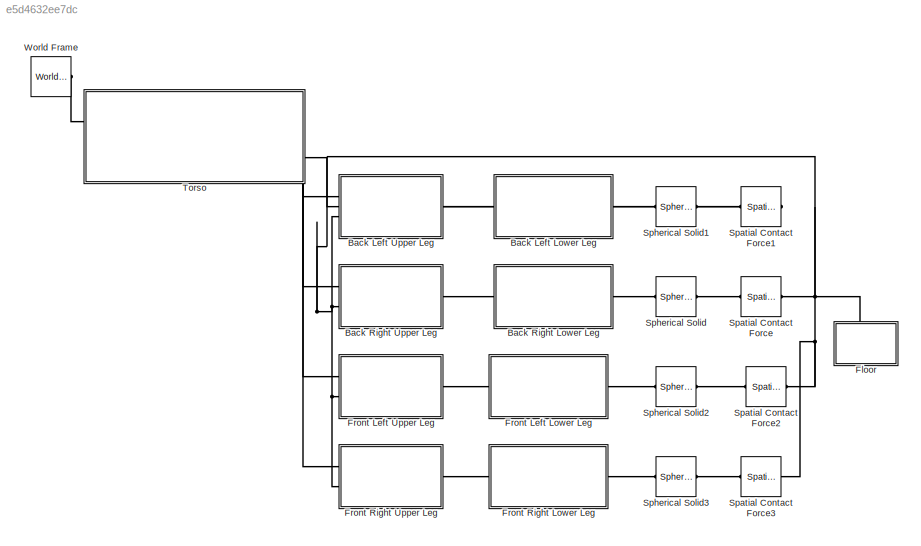
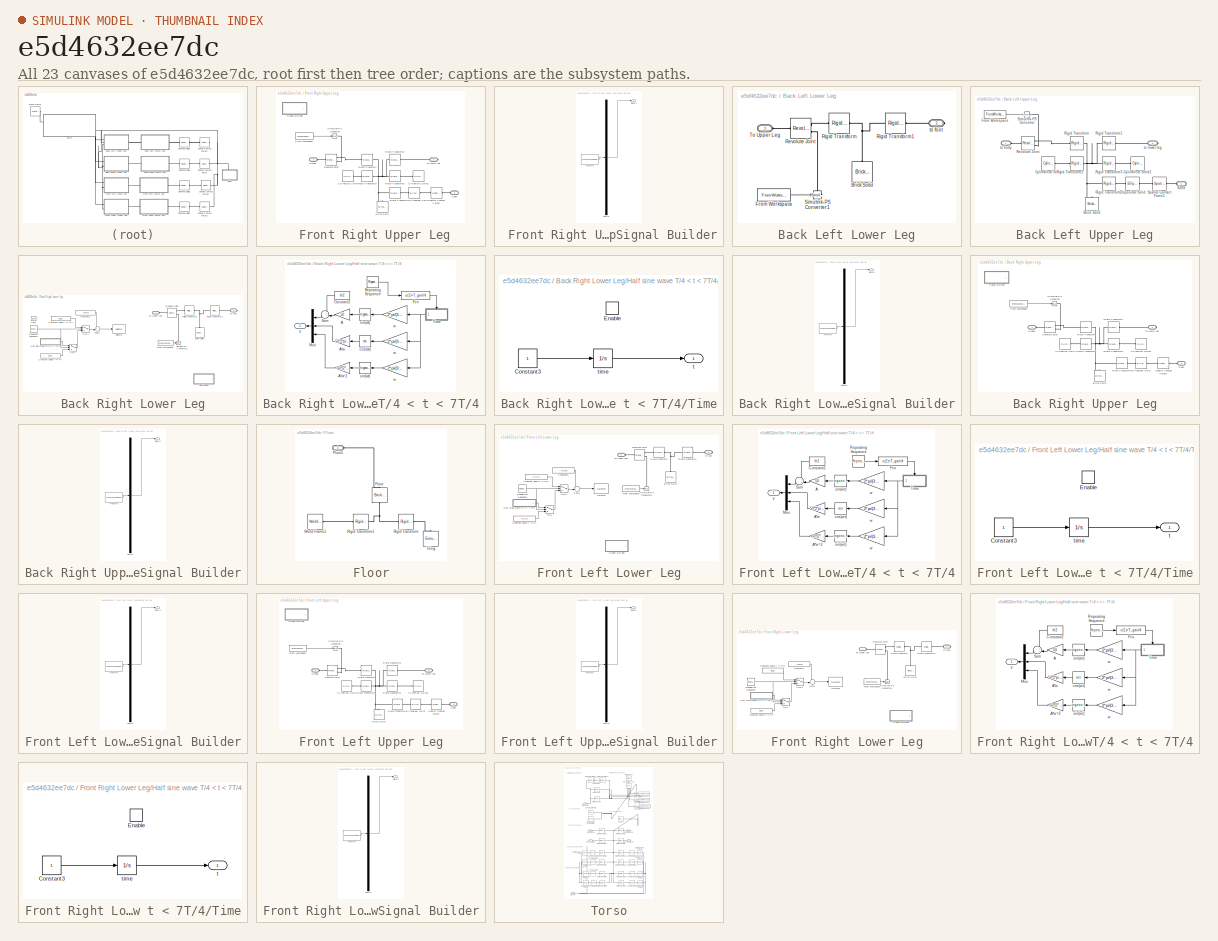
[diagram: thumbnail index - all 23 canvases of the model, root first then tree order]
MODEL slx_e5d4632ee7dc
KIND model
CONFIG AbsTol = auto
CONFIG EnableMultiTasking = on
CONFIG FixedStep = auto
CONFIG MaxStep = 0.01
CONFIG MinStep = auto
CONFIG RelTol = 1e-3
CONFIG SampleTimeConstraint = Unconstrained
CONFIG SolverName = ode15s
CONFIG StartTime = 0.0
CONFIG StopTime = 5
BLOCK [SubSystem]  Front Right Upper Leg
  Ports = [0, 0, 0, 0, 0, 2, 1]
  RequestExecContextInheritance = off
BLOCK [PMIOPort]  Front Right Upper Leg/ Knee
  Port = 3
  Side = Left
BLOCK [Reference]  Front Right Upper Leg/Brick Solid  REF=sm_lib/Body Elements/Brick Solid
  Ports = [0, 0, 0, 0, 0, 0, 1]
  SourceBlock = sm_lib/Body Elements/Brick Solid
  SourceProductBaseCode = MS
  SourceType = Brick Solid
BLOCK [Reference]  Front Right Upper Leg/Cylindrical Solid  REF=sm_lib/Body Elements/Cylindrical Solid
  Ports = [0, 0, 0, 0, 0, 0, 1]
  SourceBlock = sm_lib/Body Elements/Cylindrical Solid
  SourceProductBaseCode = MS
  SourceType = Cylindrical Solid
BLOCK [Reference]  Front Right Upper Leg/Cylindrical Solid1  REF=sm_lib/Body Elements/Cylindrical Solid
  NameLocation = top
  Ports = [0, 0, 0, 0, 0, 0, 1]
  SourceBlock = sm_lib/Body Elements/Cylindrical Solid
  SourceProductBaseCode = MS
  SourceType = Cylindrical Solid
BLOCK [Reference]  Front Right Upper Leg/Ellipsoidal Solid  REF=sm_lib/Body Elements/Ellipsoidal Solid
  NameLocation = top
  Ports = [0, 0, 0, 0, 0, 1, 1]
  SourceBlock = sm_lib/Body Elements/Ellipsoidal Solid
  SourceProductBaseCode = MS
  SourceType = Ellipsoidal Solid
BLOCK [FromWorkspace]  Front Right Upper Leg/From Workspace
  VariableName = FRUpperLeg
BLOCK [Reference]  Front Right Upper Leg/Revolute Joint  REF=sm_lib/Joints/Revolute Joint
  Ports = [0, 0, 0, 0, 0, 2, 1]
  SourceBlock = sm_lib/Joints/Revolute Joint
  SourceProductBaseCode = MS
  SourceType = Revolute Joint
BLOCK [Reference]  Front Right Upper Leg/Rigid Transform  REF=sm_lib/Frames and
Transforms/Rigid
Transform
  Ports = [0, 0, 0, 0, 0, 1, 1]
  SourceBlock = sm_lib/Frames and\nTransforms/Rigid\nTransform
  SourceProductBaseCode = MS
  SourceType = Rigid\nTransform
BLOCK [Reference]  Front Right Upper Leg/Rigid Transform1  REF=sm_lib/Frames and
Transforms/Rigid
Transform
  Ports = [0, 0, 0, 0, 0, 1, 1]
  SourceBlock = sm_lib/Frames and\nTransforms/Rigid\nTransform
  SourceProductBaseCode = MS
  SourceType = Rigid\nTransform
BLOCK [Reference]  Front Right Upper Leg/Rigid Transform2  REF=sm_lib/Frames and
Transforms/Rigid
Transform
  NameLocation = top
  Ports = [0, 0, 0, 0, 0, 1, 1]
  SourceBlock = sm_lib/Frames and\nTransforms/Rigid\nTransform
  SourceProductBaseCode = MS
  SourceType = Rigid\nTransform
BLOCK [Reference]  Front Right Upper Leg/Rigid Transform3  REF=sm_lib/Frames and
Transforms/Rigid
Transform
  Ports = [0, 0, 0, 0, 0, 1, 1]
  SourceBlock = sm_lib/Frames and\nTransforms/Rigid\nTransform
  SourceProductBaseCode = MS
  SourceType = Rigid\nTransform
BLOCK [Reference]  Front Right Upper Leg/Rigid Transform4  REF=sm_lib/Frames and
Transforms/Rigid
Transform
  Ports = [0, 0, 0, 0, 0, 1, 1]
  SourceBlock = sm_lib/Frames and\nTransforms/Rigid\nTransform
  SourceProductBaseCode = MS
  SourceType = Rigid\nTransform
BLOCK [SubSystem]  Front Right Upper Leg/Signal Builder
  ClipboardFcn = sigbuilder_block('clipboard');
  CloseFcn = sigbuilder_block('close');
  Commented = on
  ContinueFcn = sigbuilder_block('continue');
  CopyFcn = sigbuilder_block('copy');
  DeleteFcn = sigbuilder_block('delete');
  LoadFcn = sigbuilder_block('load');
  MaskHideContents = on
  ModelCloseFcn = sigbuilder_block('modelClose');
  NameChangeFcn = sigbuilder_block('namechange');
  OpenFcn = sigbuilder_block('open',[110 61 550.5 362.5 ]);
  PauseFcn = sigbuilder_block('pause');
  Ports = [0, 1]
  PreSaveFcn = sigbuilder_block('preSave');
  RequestExecContextInheritance = off
  StartFcn = sigbuilder_block('start');
  StopFcn = sigbuilder_block('stop');
  Tag = STV Subsys
BLOCK [Demux]  Front Right Upper Leg/Signal Builder/Demux
  DisplayOption = none
  Outputs = 1
  Ports = [1, 1]
  Tag = STV Demux
BLOCK [FromWorkspace]  Front Right Upper Leg/Signal Builder/FromWs
  Tag = STV FromWs
  VariableName = tuvar
BLOCK [Outport]  Front Right Upper Leg/Signal Builder/Signal 1
  Tag = STV Outport
BLOCK [Reference]  Front Right Upper Leg/Simulink-PS Converter  REF=nesl_utility/Simulink-PS
Converter
  Ports = [1, 0, 0, 0, 0, 0, 1]
  SourceBlock = nesl_utility/Simulink-PS\nConverter
  SourceProductBaseCode = SS
  SourceType = Simulink-PS\nConverter
BLOCK [Reference]  Front Right Upper Leg/Spatial Contact Force1  REF=sm_lib/Forces and
Torques/Spatial
Contact Force
  Ports = [0, 0, 0, 0, 0, 1, 1]
  SourceBlock = sm_lib/Forces and\nTorques/Spatial\nContact Force
  SourceProductBaseCode = MS
  SourceType = Spatial\nContact Force
BLOCK [PMIOPort]  Front Right Upper Leg/to body
  Side = Left
BLOCK [PMIOPort]  Front Right Upper Leg/to lower leg
  Port = 2
  Side = Right
BLOCK [SubSystem] Back Left Lower Leg
  Ports = [0, 0, 0, 0, 0, 1, 1]
  RequestExecContextInheritance = off
BLOCK [Reference] Back Left Lower Leg/Brick Solid  REF=sm_lib/Body Elements/Brick Solid
  NameLocation = right
  Ports = [0, 0, 0, 0, 0, 0, 1]
  SourceBlock = sm_lib/Body Elements/Brick Solid
  SourceProductBaseCode = MS
  SourceType = Brick Solid
BLOCK [FromWorkspace] Back Left Lower Leg/From Workspace
  VariableName = BLLowerLeg
BLOCK [Reference] Back Left Lower Leg/Revolute Joint  REF=sm_lib/Joints/Revolute Joint
  Ports = [0, 0, 0, 0, 0, 2, 1]
  SourceBlock = sm_lib/Joints/Revolute Joint
  SourceProductBaseCode = MS
  SourceType = Revolute Joint
BLOCK [Reference] Back Left Lower Leg/Rigid Transform  REF=sm_lib/Frames and
Transforms/Rigid
Transform
  Ports = [0, 0, 0, 0, 0, 1, 1]
  SourceBlock = sm_lib/Frames and\nTransforms/Rigid\nTransform
  SourceProductBaseCode = MS
  SourceType = Rigid\nTransform
BLOCK [Reference] Back Left Lower Leg/Rigid Transform1  REF=sm_lib/Frames and
Transforms/Rigid
Transform
  Ports = [0, 0, 0, 0, 0, 1, 1]
  SourceBlock = sm_lib/Frames and\nTransforms/Rigid\nTransform
  SourceProductBaseCode = MS
  SourceType = Rigid\nTransform
BLOCK [Reference] Back Left Lower Leg/Simulink-PS Converter1  REF=nesl_utility/Simulink-PS
Converter
  Ports = [1, 0, 0, 0, 0, 0, 1]
  SourceBlock = nesl_utility/Simulink-PS\nConverter
  SourceProductBaseCode = SS
  SourceType = Simulink-PS\nConverter
BLOCK [PMIOPort] Back Left Lower Leg/To Upper Leg
  Side = Left
BLOCK [PMIOPort] Back Left Lower Leg/to foot
  Port = 2
  Side = Right
BLOCK [SubSystem] Back Left Upper Leg
  Ports = [0, 0, 0, 0, 0, 2, 1]
  RequestExecContextInheritance = off
BLOCK [PMIOPort] Back Left Upper Leg/ Knee
  Port = 3
  Side = Left
BLOCK [Reference] Back Left Upper Leg/Brick Solid  REF=sm_lib/Body Elements/Brick Solid
  Ports = [0, 0, 0, 0, 0, 0, 1]
  SourceBlock = sm_lib/Body Elements/Brick Solid
  SourceProductBaseCode = MS
  SourceType = Brick Solid
BLOCK [Reference] Back Left Upper Leg/Cylindrical Solid  REF=sm_lib/Body Elements/Cylindrical Solid
  Ports = [0, 0, 0, 0, 0, 0, 1]
  SourceBlock = sm_lib/Body Elements/Cylindrical Solid
  SourceProductBaseCode = MS
  SourceType = Cylindrical Solid
BLOCK [Reference] Back Left Upper Leg/Cylindrical Solid1  REF=sm_lib/Body Elements/Cylindrical Solid
  NameLocation = top
  Ports = [0, 0, 0, 0, 0, 0, 1]
  SourceBlock = sm_lib/Body Elements/Cylindrical Solid
  SourceProductBaseCode = MS
  SourceType = Cylindrical Solid
BLOCK [Reference] Back Left Upper Leg/Ellipsoidal Solid  REF=sm_lib/Body Elements/Ellipsoidal Solid
  NameLocation = top
  Ports = [0, 0, 0, 0, 0, 1, 1]
  SourceBlock = sm_lib/Body Elements/Ellipsoidal Solid
  SourceProductBaseCode = MS
  SourceType = Ellipsoidal Solid
BLOCK [FromWorkspace] Back Left Upper Leg/From Workspace
  VariableName = BLUpperLeg
BLOCK [Reference] Back Left Upper Leg/Revolute Joint  REF=sm_lib/Joints/Revolute Joint
  Ports = [0, 0, 0, 0, 0, 2, 1]
  SourceBlock = sm_lib/Joints/Revolute Joint
  SourceProductBaseCode = MS
  SourceType = Revolute Joint
BLOCK [Reference] Back Left Upper Leg/Rigid Transform  REF=sm_lib/Frames and
Transforms/Rigid
Transform
  Ports = [0, 0, 0, 0, 0, 1, 1]
  SourceBlock = sm_lib/Frames and\nTransforms/Rigid\nTransform
  SourceProductBaseCode = MS
  SourceType = Rigid\nTransform
BLOCK [Reference] Back Left Upper Leg/Rigid Transform1  REF=sm_lib/Frames and
Transforms/Rigid
Transform
  Ports = [0, 0, 0, 0, 0, 1, 1]
  SourceBlock = sm_lib/Frames and\nTransforms/Rigid\nTransform
  SourceProductBaseCode = MS
  SourceType = Rigid\nTransform
BLOCK [Reference] Back Left Upper Leg/Rigid Transform2  REF=sm_lib/Frames and
Transforms/Rigid
Transform
  NameLocation = top
  Ports = [0, 0, 0, 0, 0, 1, 1]
  SourceBlock = sm_lib/Frames and\nTransforms/Rigid\nTransform
  SourceProductBaseCode = MS
  SourceType = Rigid\nTransform
BLOCK [Reference] Back Left Upper Leg/Rigid Transform3  REF=sm_lib/Frames and
Transforms/Rigid
Transform
  Ports = [0, 0, 0, 0, 0, 1, 1]
  SourceBlock = sm_lib/Frames and\nTransforms/Rigid\nTransform
  SourceProductBaseCode = MS
  SourceType = Rigid\nTransform
BLOCK [Reference] Back Left Upper Leg/Rigid Transform4  REF=sm_lib/Frames and
Transforms/Rigid
Transform
  Ports = [0, 0, 0, 0, 0, 1, 1]
  SourceBlock = sm_lib/Frames and\nTransforms/Rigid\nTransform
  SourceProductBaseCode = MS
  SourceType = Rigid\nTransform
BLOCK [Reference] Back Left Upper Leg/Simulink-PS Converter  REF=nesl_utility/Simulink-PS
Converter
  Ports = [1, 0, 0, 0, 0, 0, 1]
  SourceBlock = nesl_utility/Simulink-PS\nConverter
  SourceProductBaseCode = SS
  SourceType = Simulink-PS\nConverter
BLOCK [Reference] Back Left Upper Leg/Spatial Contact Force1  REF=sm_lib/Forces and
Torques/Spatial
Contact Force
  Ports = [0, 0, 0, 0, 0, 1, 1]
  SourceBlock = sm_lib/Forces and\nTorques/Spatial\nContact Force
  SourceProductBaseCode = MS
  SourceType = Spatial\nContact Force
BLOCK [PMIOPort] Back Left Upper Leg/to body
  Side = Left
BLOCK [PMIOPort] Back Left Upper Leg/to lower leg
  Port = 2
  Side = Right
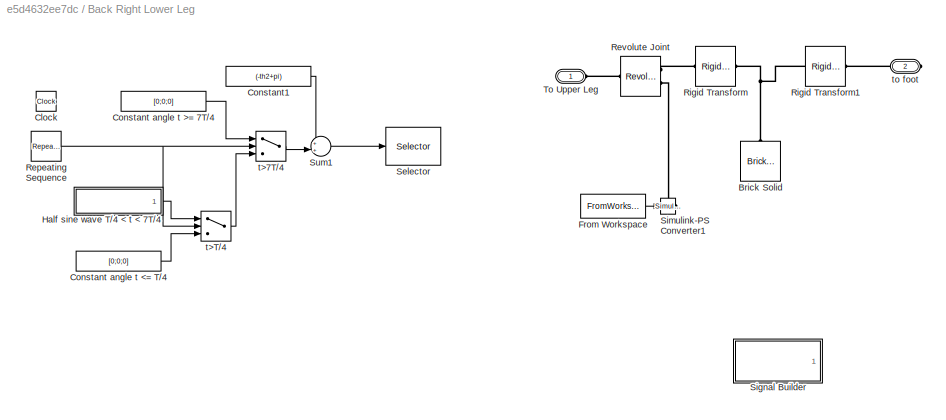
BLOCK [SubSystem] Back Right Lower Leg
  Ports = [0, 0, 0, 0, 0, 1, 1]
  RequestExecContextInheritance = off
BLOCK [Reference] Back Right Lower Leg/Brick Solid  REF=sm_lib/Body Elements/Brick Solid
  NameLocation = right
  Ports = [0, 0, 0, 0, 0, 0, 1]
  SourceBlock = sm_lib/Body Elements/Brick Solid
  SourceProductBaseCode = MS
  SourceType = Brick Solid
BLOCK [Clock] Back Right Lower Leg/Clock
  Commented = on
BLOCK [Constant] Back Right Lower Leg/Constant angle t <= T//4
  Commented = on
  Value = [0;0;0]
BLOCK [Constant] Back Right Lower Leg/Constant angle t >= 7T//4
  Commented = on
  NameLocation = top
  Value = [0;0;0]
BLOCK [Constant] Back Right Lower Leg/Constant1
  Commented = on
  Value = (-th2+pi)
BLOCK [FromWorkspace] Back Right Lower Leg/From Workspace
  VariableName = BRLowerLeg
BLOCK [SubSystem] Back Right Lower Leg/Half sine wave T//4 < t < 7T//4
  Commented = on
  Ports = [0, 1]
  RequestExecContextInheritance = off
BLOCK [Gain] Back Right Lower Leg/Half sine wave T//4 < t < 7T//4/-A*w^2
  Gain = -50*(2*pi/(3*T_gait))^2
BLOCK [Gain] Back Right Lower Leg/Half sine wave T//4 < t < 7T//4/A
  Gain = 50
BLOCK [Gain] Back Right Lower Leg/Half sine wave T//4 < t < 7T//4/A*w
  Gain = 50*2*pi/(3*T_gait)
BLOCK [Constant] Back Right Lower Leg/Half sine wave T//4 < t < 7T//4/Constant2
  Value = th2
BLOCK [Fcn] Back Right Lower Leg/Half sine wave T//4 < t < 7T//4/Fcn
  Expr = u(1)>T_gait/4
BLOCK [Mux] Back Right Lower Leg/Half sine wave T//4 < t < 7T//4/Mux
  DisplayOption = bar
  Inputs = 3
  NameLocation = top
  Ports = [3, 1]
BLOCK [Reference] Back Right Lower Leg/Half sine wave T//4 < t < 7T//4/Repeating Sequence  REF=simulink/Sources/Repeating
Sequence
  Ports = [0, 1]
  SourceBlock = simulink/Sources/Repeating\nSequence
  SourceProductBaseCode = SL
  SourceType = Repeating table
BLOCK [Sum] Back Right Lower Leg/Half sine wave T//4 < t < 7T//4/Sum
  Inputs = ++|
  NameLocation = top
  Ports = [2, 1]
BLOCK [SubSystem] Back Right Lower Leg/Half sine wave T//4 < t < 7T//4/Time
  Ports = [0, 1, 1]
  RequestExecContextInheritance = off
  TreatAsAtomicUnit = on
BLOCK [Constant] Back Right Lower Leg/Half sine wave T//4 < t < 7T//4/Time/Constant3
BLOCK [EnablePort] Back Right Lower Leg/Half sine wave T//4 < t < 7T//4/Time/Enable
  Ports = []
BLOCK [Outport] Back Right Lower Leg/Half sine wave T//4 < t < 7T//4/Time/t
  InitialOutput = 0
  VectorParamsAs1DForOutWhenUnconnected = off
BLOCK [Integrator] Back Right Lower Leg/Half sine wave T//4 < t < 7T//4/Time/time
  Ports = [1, 1]
BLOCK [Trigonometry] Back Right Lower Leg/Half sine wave T//4 < t < 7T//4/cos(wt)
  Operator = cos
  Ports = [1, 1]
BLOCK [Trigonometry] Back Right Lower Leg/Half sine wave T//4 < t < 7T//4/sin(wt)
  Ports = [1, 1]
BLOCK [Trigonometry] Back Right Lower Leg/Half sine wave T//4 < t < 7T//4/sin(wt) 
  Ports = [1, 1]
BLOCK [Gain] Back Right Lower Leg/Half sine wave T//4 < t < 7T//4/w
  Gain = 2*pi/(3*T_gait)
BLOCK [Gain] Back Right Lower Leg/Half sine wave T//4 < t < 7T//4/w 
  Gain = 2*pi/(3*T_gait)
BLOCK [Gain] Back Right Lower Leg/Half sine wave T//4 < t < 7T//4/w  
  Gain = 2*pi/(3*T_gait)
BLOCK [Outport] Back Right Lower Leg/Half sine wave T//4 < t < 7T//4/y
  VectorParamsAs1DForOutWhenUnconnected = off
BLOCK [Reference] Back Right Lower Leg/Repeating Sequence  REF=simulink/Sources/Repeating
Sequence
  Commented = on
  Ports = [0, 1]
  SourceBlock = simulink/Sources/Repeating\nSequence
  SourceProductBaseCode = SL
  SourceType = Repeating table
BLOCK [Reference] Back Right Lower Leg/Revolute Joint  REF=sm_lib/Joints/Revolute Joint
  Ports = [0, 0, 0, 0, 0, 2, 1]
  SourceBlock = sm_lib/Joints/Revolute Joint
  SourceProductBaseCode = MS
  SourceType = Revolute Joint
BLOCK [Reference] Back Right Lower Leg/Rigid Transform  REF=sm_lib/Frames and
Transforms/Rigid
Transform
  Ports = [0, 0, 0, 0, 0, 1, 1]
  SourceBlock = sm_lib/Frames and\nTransforms/Rigid\nTransform
  SourceProductBaseCode = MS
  SourceType = Rigid\nTransform
BLOCK [Reference] Back Right Lower Leg/Rigid Transform1  REF=sm_lib/Frames and
Transforms/Rigid
Transform
  Ports = [0, 0, 0, 0, 0, 1, 1]
  SourceBlock = sm_lib/Frames and\nTransforms/Rigid\nTransform
  SourceProductBaseCode = MS
  SourceType = Rigid\nTransform
BLOCK [Selector] Back Right Lower Leg/Selector
  Commented = on
  IndexOptions = Index vector (dialog)
  Indices = 1
  InputPortWidth = 3
  OutputSizes = 1
  Ports = [1, 1]
BLOCK [SubSystem] Back Right Lower Leg/Signal Builder
  ClipboardFcn = sigbuilder_block('clipboard');
  CloseFcn = sigbuilder_block('close');
  Commented = on
  ContinueFcn = sigbuilder_block('continue');
  CopyFcn = sigbuilder_block('copy');
  DeleteFcn = sigbuilder_block('delete');
  LoadFcn = sigbuilder_block('load');
  MaskHideContents = on
  ModelCloseFcn = sigbuilder_block('modelClose');
  NameChangeFcn = sigbuilder_block('namechange');
  OpenFcn = sigbuilder_block('open',[110 61 550.5 362.5 ]);
  PauseFcn = sigbuilder_block('pause');
  Ports = [0, 1]
  PreSaveFcn = sigbuilder_block('preSave');
  RequestExecContextInheritance = off
  StartFcn = sigbuilder_block('start');
  StopFcn = sigbuilder_block('stop');
  Tag = STV Subsys
BLOCK [Demux] Back Right Lower Leg/Signal Builder/Demux
  DisplayOption = none
  Outputs = 1
  Ports = [1, 1]
  Tag = STV Demux
BLOCK [FromWorkspace] Back Right Lower Leg/Signal Builder/FromWs
  Tag = STV FromWs
  VariableName = tuvar
BLOCK [Outport] Back Right Lower Leg/Signal Builder/Signal 1
  Tag = STV Outport
BLOCK [Reference] Back Right Lower Leg/Simulink-PS Converter1  REF=nesl_utility/Simulink-PS
Converter
  Ports = [1, 0, 0, 0, 0, 0, 1]
  SourceBlock = nesl_utility/Simulink-PS\nConverter
  SourceProductBaseCode = SS
  SourceType = Simulink-PS\nConverter
BLOCK [Sum] Back Right Lower Leg/Sum1
  Commented = on
  Inputs = ++|
  Ports = [2, 1]
BLOCK [PMIOPort] Back Right Lower Leg/To Upper Leg
  Side = Left
BLOCK [Switch] Back Right Lower Leg/t>7T//4
  Commented = on
  InputSameDT = off
  SaturateOnIntegerOverflow = off
  Threshold = 7*T_gait/4
BLOCK [Switch] Back Right Lower Leg/t>T//4
  Commented = on
  InputSameDT = off
  SaturateOnIntegerOverflow = off
  Threshold = T_gait/4
BLOCK [PMIOPort] Back Right Lower Leg/to foot
  Port = 2
  Side = Right
BLOCK [SubSystem] Back Right Upper Leg
  Ports = [0, 0, 0, 0, 0, 2, 1]
  RequestExecContextInheritance = off
BLOCK [PMIOPort] Back Right Upper Leg/ Knee
  Port = 3
  Side = Left
BLOCK [Reference] Back Right Upper Leg/Brick Solid  REF=sm_lib/Body Elements/Brick Solid
  Ports = [0, 0, 0, 0, 0, 0, 1]
  SourceBlock = sm_lib/Body Elements/Brick Solid
  SourceProductBaseCode = MS
  SourceType = Brick Solid
BLOCK [Reference] Back Right Upper Leg/Cylindrical Solid  REF=sm_lib/Body Elements/Cylindrical Solid
  Ports = [0, 0, 0, 0, 0, 0, 1]
  SourceBlock = sm_lib/Body Elements/Cylindrical Solid
  SourceProductBaseCode = MS
  SourceType = Cylindrical Solid
BLOCK [Reference] Back Right Upper Leg/Cylindrical Solid1  REF=sm_lib/Body Elements/Cylindrical Solid
  NameLocation = top
  Ports = [0, 0, 0, 0, 0, 0, 1]
  SourceBlock = sm_lib/Body Elements/Cylindrical Solid
  SourceProductBaseCode = MS
  SourceType = Cylindrical Solid
BLOCK [Reference] Back Right Upper Leg/Ellipsoidal Solid  REF=sm_lib/Body Elements/Ellipsoidal Solid
  NameLocation = top
  Ports = [0, 0, 0, 0, 0, 1, 1]
  SourceBlock = sm_lib/Body Elements/Ellipsoidal Solid
  SourceProductBaseCode = MS
  SourceType = Ellipsoidal Solid
BLOCK [FromWorkspace] Back Right Upper Leg/From Workspace
  VariableName = BRUpperLeg
BLOCK [Reference] Back Right Upper Leg/Revolute Joint  REF=sm_lib/Joints/Revolute Joint
  Ports = [0, 0, 0, 0, 0, 2, 1]
  SourceBlock = sm_lib/Joints/Revolute Joint
  SourceProductBaseCode = MS
  SourceType = Revolute Joint
BLOCK [Reference] Back Right Upper Leg/Rigid Transform  REF=sm_lib/Frames and
Transforms/Rigid
Transform
  Ports = [0, 0, 0, 0, 0, 1, 1]
  SourceBlock = sm_lib/Frames and\nTransforms/Rigid\nTransform
  SourceProductBaseCode = MS
  SourceType = Rigid\nTransform
BLOCK [Reference] Back Right Upper Leg/Rigid Transform1  REF=sm_lib/Frames and
Transforms/Rigid
Transform
  Ports = [0, 0, 0, 0, 0, 1, 1]
  SourceBlock = sm_lib/Frames and\nTransforms/Rigid\nTransform
  SourceProductBaseCode = MS
  SourceType = Rigid\nTransform
BLOCK [Reference] Back Right Upper Leg/Rigid Transform2  REF=sm_lib/Frames and
Transforms/Rigid
Transform
  NameLocation = top
  Ports = [0, 0, 0, 0, 0, 1, 1]
  SourceBlock = sm_lib/Frames and\nTransforms/Rigid\nTransform
  SourceProductBaseCode = MS
  SourceType = Rigid\nTransform
BLOCK [Reference] Back Right Upper Leg/Rigid Transform3  REF=sm_lib/Frames and
Transforms/Rigid
Transform
  Ports = [0, 0, 0, 0, 0, 1, 1]
  SourceBlock = sm_lib/Frames and\nTransforms/Rigid\nTransform
  SourceProductBaseCode = MS
  SourceType = Rigid\nTransform
BLOCK [Reference] Back Right Upper Leg/Rigid Transform4  REF=sm_lib/Frames and
Transforms/Rigid
Transform
  Ports = [0, 0, 0, 0, 0, 1, 1]
  SourceBlock = sm_lib/Frames and\nTransforms/Rigid\nTransform
  SourceProductBaseCode = MS
  SourceType = Rigid\nTransform
BLOCK [SubSystem] Back Right Upper Leg/Signal Builder
  ClipboardFcn = sigbuilder_block('clipboard');
  CloseFcn = sigbuilder_block('close');
  Commented = on
  ContinueFcn = sigbuilder_block('continue');
  CopyFcn = sigbuilder_block('copy');
  DeleteFcn = sigbuilder_block('delete');
  LoadFcn = sigbuilder_block('load');
  MaskHideContents = on
  ModelCloseFcn = sigbuilder_block('modelClose');
  NameChangeFcn = sigbuilder_block('namechange');
  OpenFcn = sigbuilder_block('open',[110 61 550.5 362.5 ]);
  PauseFcn = sigbuilder_block('pause');
  Ports = [0, 1]
  PreSaveFcn = sigbuilder_block('preSave');
  RequestExecContextInheritance = off
  StartFcn = sigbuilder_block('start');
  StopFcn = sigbuilder_block('stop');
  Tag = STV Subsys
BLOCK [Demux] Back Right Upper Leg/Signal Builder/Demux
  DisplayOption = none
  Outputs = 1
  Ports = [1, 1]
  Tag = STV Demux
BLOCK [FromWorkspace] Back Right Upper Leg/Signal Builder/FromWs
  Tag = STV FromWs
  VariableName = tuvar
BLOCK [Outport] Back Right Upper Leg/Signal Builder/Signal 1
  Tag = STV Outport
BLOCK [Reference] Back Right Upper Leg/Simulink-PS Converter  REF=nesl_utility/Simulink-PS
Converter
  Ports = [1, 0, 0, 0, 0, 0, 1]
  SourceBlock = nesl_utility/Simulink-PS\nConverter
  SourceProductBaseCode = SS
  SourceType = Simulink-PS\nConverter
BLOCK [Reference] Back Right Upper Leg/Spatial Contact Force1  REF=sm_lib/Forces and
Torques/Spatial
Contact Force
  Ports = [0, 0, 0, 0, 0, 1, 1]
  SourceBlock = sm_lib/Forces and\nTorques/Spatial\nContact Force
  SourceProductBaseCode = MS
  SourceType = Spatial\nContact Force
BLOCK [PMIOPort] Back Right Upper Leg/to body
  Side = Left
BLOCK [PMIOPort] Back Right Upper Leg/to lower leg
  Port = 2
  Side = Right
BLOCK [SubSystem] Floor
  PortSchema = {"entries":[{"content":{"sides":[{"content":{"connectorIds":[]},"type":"ConnectorPlacement.EquallySpacedRectSide","uuid":"11e96fa0-1698-473b-91b9-c65afd80511d"},{"content":{"connectorIds":[],"side":"RIGHT"},"type":"ConnectorPlacement.EquallySpacedRectSide","uuid":"698adcb8-63bc-493a-8506-9415d482b8fe"},{"content":{"connectorIds":["LConn1"],"side":"TOP"},"type":"ConnectorPlacement.EquallySpacedRect...<+239ch>
  Ports = [0, 0, 0, 0, 0, 1]
  RequestExecContextInheritance = off
BLOCK [Reference] Floor/Floor  REF=sm_lib/Body Elements/Brick Solid
  NameLocation = left
  Ports = [0, 0, 0, 0, 0, 1, 1]
  SourceBlock = sm_lib/Body Elements/Brick Solid
  SourceProductBaseCode = MS
  SourceType = Brick Solid
BLOCK [PMIOPort] Floor/Floor1
  Side = Left
BLOCK [Reference] Floor/Rigid Transform  REF=sm_lib/Frames and
Transforms/Rigid
Transform
  Ports = [0, 0, 0, 0, 0, 1, 1]
  SourceBlock = sm_lib/Frames and\nTransforms/Rigid\nTransform
  SourceProductBaseCode = MS
  SourceType = Rigid\nTransform
BLOCK [Reference] Floor/Rigid Transform1  REF=sm_lib/Frames and
Transforms/Rigid
Transform
  Ports = [0, 0, 0, 0, 0, 1, 1]
  SourceBlock = sm_lib/Frames and\nTransforms/Rigid\nTransform
  SourceProductBaseCode = MS
  SourceType = Rigid\nTransform
BLOCK [Reference] Floor/Tiling  REF=sm_lib/Body Elements/Extruded Solid
  NameLocation = left
  Ports = [0, 0, 0, 0, 0, 0, 1]
  SourceBlock = sm_lib/Body Elements/Extruded Solid
  SourceProductBaseCode = MS
  SourceType = Extruded Solid
BLOCK [Reference] Floor/World Frame1  REF=sm_lib/Frames and
Transforms/World Frame
  Ports = [0, 0, 0, 0, 0, 0, 1]
  SourceBlock = sm_lib/Frames and\nTransforms/World Frame
  SourceProductBaseCode = MS
  SourceType = World Frame
BLOCK [SubSystem] Front Left Lower Leg
  Ports = [0, 0, 0, 0, 0, 1, 1]
  RequestExecContextInheritance = off
BLOCK [Reference] Front Left Lower Leg/Brick Solid  REF=sm_lib/Body Elements/Brick Solid
  NameLocation = right
  Ports = [0, 0, 0, 0, 0, 0, 1]
  SourceBlock = sm_lib/Body Elements/Brick Solid
  SourceProductBaseCode = MS
  SourceType = Brick Solid
BLOCK [Constant] Front Left Lower Leg/Constant angle t <= T//4
  Commented = on
  Value = [0;0;0]
BLOCK [Constant] Front Left Lower Leg/Constant angle t >= 7T//4
  Commented = on
  NameLocation = top
  Value = [0;0;0]
BLOCK [Constant] Front Left Lower Leg/Constant1
  Commented = on
  Value = (-th2+pi)
BLOCK [FromWorkspace] Front Left Lower Leg/From Workspace
  VariableName = FLLowerLeg
BLOCK [SubSystem] Front Left Lower Leg/Half sine wave T//4 < t < 7T//4
  Commented = on
  Ports = [0, 1]
  RequestExecContextInheritance = off
BLOCK [Gain] Front Left Lower Leg/Half sine wave T//4 < t < 7T//4/-A*w^2
  Gain = -50*(2*pi/(3*T_gait))^2
BLOCK [Gain] Front Left Lower Leg/Half sine wave T//4 < t < 7T//4/A
  Gain = 50
BLOCK [Gain] Front Left Lower Leg/Half sine wave T//4 < t < 7T//4/A*w
  Gain = 50*2*pi/(3*T_gait)
BLOCK [Constant] Front Left Lower Leg/Half sine wave T//4 < t < 7T//4/Constant2
  Value = th2
BLOCK [Fcn] Front Left Lower Leg/Half sine wave T//4 < t < 7T//4/Fcn
  Expr = u(1)>T_gait/4
BLOCK [Mux] Front Left Lower Leg/Half sine wave T//4 < t < 7T//4/Mux
  DisplayOption = bar
  Inputs = 3
  NameLocation = top
  Ports = [3, 1]
BLOCK [Reference] Front Left Lower Leg/Half sine wave T//4 < t < 7T//4/Repeating Sequence  REF=simulink/Sources/Repeating
Sequence
  Ports = [0, 1]
  SourceBlock = simulink/Sources/Repeating\nSequence
  SourceProductBaseCode = SL
  SourceType = Repeating table
BLOCK [Sum] Front Left Lower Leg/Half sine wave T//4 < t < 7T//4/Sum
  Inputs = ++|
  NameLocation = top
  Ports = [2, 1]
BLOCK [SubSystem] Front Left Lower Leg/Half sine wave T//4 < t < 7T//4/Time
  Ports = [0, 1, 1]
  RequestExecContextInheritance = off
  TreatAsAtomicUnit = on
BLOCK [Constant] Front Left Lower Leg/Half sine wave T//4 < t < 7T//4/Time/Constant3
BLOCK [EnablePort] Front Left Lower Leg/Half sine wave T//4 < t < 7T//4/Time/Enable
  Ports = []
BLOCK [Outport] Front Left Lower Leg/Half sine wave T//4 < t < 7T//4/Time/t
  InitialOutput = 0
  VectorParamsAs1DForOutWhenUnconnected = off
BLOCK [Integrator] Front Left Lower Leg/Half sine wave T//4 < t < 7T//4/Time/time
  Ports = [1, 1]
BLOCK [Trigonometry] Front Left Lower Leg/Half sine wave T//4 < t < 7T//4/cos(wt)
  Operator = cos
  Ports = [1, 1]
BLOCK [Trigonometry] Front Left Lower Leg/Half sine wave T//4 < t < 7T//4/sin(wt)
  Ports = [1, 1]
BLOCK [Trigonometry] Front Left Lower Leg/Half sine wave T//4 < t < 7T//4/sin(wt) 
  Ports = [1, 1]
BLOCK [Gain] Front Left Lower Leg/Half sine wave T//4 < t < 7T//4/w
  Gain = 2*pi/(3*T_gait)
BLOCK [Gain] Front Left Lower Leg/Half sine wave T//4 < t < 7T//4/w 
  Gain = 2*pi/(3*T_gait)
BLOCK [Gain] Front Left Lower Leg/Half sine wave T//4 < t < 7T//4/w  
  Gain = 2*pi/(3*T_gait)
BLOCK [Outport] Front Left Lower Leg/Half sine wave T//4 < t < 7T//4/y
  VectorParamsAs1DForOutWhenUnconnected = off
BLOCK [Reference] Front Left Lower Leg/Repeating Sequence  REF=simulink/Sources/Repeating
Sequence
  Commented = on
  Ports = [0, 1]
  SourceBlock = simulink/Sources/Repeating\nSequence
  SourceProductBaseCode = SL
  SourceType = Repeating table
BLOCK [Reference] Front Left Lower Leg/Revolute Joint  REF=sm_lib/Joints/Revolute Joint
  Ports = [0, 0, 0, 0, 0, 2, 1]
  SourceBlock = sm_lib/Joints/Revolute Joint
  SourceProductBaseCode = MS
  SourceType = Revolute Joint
BLOCK [Reference] Front Left Lower Leg/Rigid Transform  REF=sm_lib/Frames and
Transforms/Rigid
Transform
  Ports = [0, 0, 0, 0, 0, 1, 1]
  SourceBlock = sm_lib/Frames and\nTransforms/Rigid\nTransform
  SourceProductBaseCode = MS
  SourceType = Rigid\nTransform
BLOCK [Reference] Front Left Lower Leg/Rigid Transform1  REF=sm_lib/Frames and
Transforms/Rigid
Transform
  Ports = [0, 0, 0, 0, 0, 1, 1]
  SourceBlock = sm_lib/Frames and\nTransforms/Rigid\nTransform
  SourceProductBaseCode = MS
  SourceType = Rigid\nTransform
BLOCK [Selector] Front Left Lower Leg/Selector
  Commented = on
  IndexOptions = Index vector (dialog)
  Indices = 1
  InputPortWidth = 3
  OutputSizes = 1
  Ports = [1, 1]
BLOCK [SubSystem] Front Left Lower Leg/Signal Builder
  ClipboardFcn = sigbuilder_block('clipboard');
  CloseFcn = sigbuilder_block('close');
  Commented = on
  ContinueFcn = sigbuilder_block('continue');
  CopyFcn = sigbuilder_block('copy');
  DeleteFcn = sigbuilder_block('delete');
  LoadFcn = sigbuilder_block('load');
  MaskHideContents = on
  ModelCloseFcn = sigbuilder_block('modelClose');
  NameChangeFcn = sigbuilder_block('namechange');
  OpenFcn = sigbuilder_block('open',[110 61 550.5 362.5 ]);
  PauseFcn = sigbuilder_block('pause');
  Ports = [0, 1]
  PreSaveFcn = sigbuilder_block('preSave');
  RequestExecContextInheritance = off
  StartFcn = sigbuilder_block('start');
  StopFcn = sigbuilder_block('stop');
  Tag = STV Subsys
BLOCK [Demux] Front Left Lower Leg/Signal Builder/Demux
  DisplayOption = none
  Outputs = 1
  Ports = [1, 1]
  Tag = STV Demux
BLOCK [FromWorkspace] Front Left Lower Leg/Signal Builder/FromWs
  Tag = STV FromWs
  VariableName = tuvar
BLOCK [Outport] Front Left Lower Leg/Signal Builder/Signal 1
  Tag = STV Outport
BLOCK [Reference] Front Left Lower Leg/Simulink-PS Converter1  REF=nesl_utility/Simulink-PS
Converter
  Ports = [1, 0, 0, 0, 0, 0, 1]
  SourceBlock = nesl_utility/Simulink-PS\nConverter
  SourceProductBaseCode = SS
  SourceType = Simulink-PS\nConverter
BLOCK [Sum] Front Left Lower Leg/Sum1
  Commented = on
  Inputs = ++|
  Ports = [2, 1]
BLOCK [PMIOPort] Front Left Lower Leg/To Upper Leg
  Side = Left
BLOCK [Switch] Front Left Lower Leg/t>7T//4
  Commented = on
  InputSameDT = off
  SaturateOnIntegerOverflow = off
  Threshold = 7*T_gait/4
BLOCK [Switch] Front Left Lower Leg/t>T//4
  Commented = on
  InputSameDT = off
  SaturateOnIntegerOverflow = off
  Threshold = T_gait/4
BLOCK [PMIOPort] Front Left Lower Leg/to foot
  Port = 2
  Side = Right
BLOCK [SubSystem] Front Left Upper Leg
  Ports = [0, 0, 0, 0, 0, 2, 1]
  RequestExecContextInheritance = off
BLOCK [PMIOPort] Front Left Upper Leg/ Knee
  Port = 3
  Side = Left
BLOCK [Reference] Front Left Upper Leg/Brick Solid  REF=sm_lib/Body Elements/Brick Solid
  Ports = [0, 0, 0, 0, 0, 0, 1]
  SourceBlock = sm_lib/Body Elements/Brick Solid
  SourceProductBaseCode = MS
  SourceType = Brick Solid
BLOCK [Reference] Front Left Upper Leg/Cylindrical Solid  REF=sm_lib/Body Elements/Cylindrical Solid
  Ports = [0, 0, 0, 0, 0, 0, 1]
  SourceBlock = sm_lib/Body Elements/Cylindrical Solid
  SourceProductBaseCode = MS
  SourceType = Cylindrical Solid
BLOCK [Reference] Front Left Upper Leg/Cylindrical Solid1  REF=sm_lib/Body Elements/Cylindrical Solid
  NameLocation = top
  Ports = [0, 0, 0, 0, 0, 0, 1]
  SourceBlock = sm_lib/Body Elements/Cylindrical Solid
  SourceProductBaseCode = MS
  SourceType = Cylindrical Solid
BLOCK [Reference] Front Left Upper Leg/Ellipsoidal Solid  REF=sm_lib/Body Elements/Ellipsoidal Solid
  NameLocation = top
  Ports = [0, 0, 0, 0, 0, 1, 1]
  SourceBlock = sm_lib/Body Elements/Ellipsoidal Solid
  SourceProductBaseCode = MS
  SourceType = Ellipsoidal Solid
BLOCK [FromWorkspace] Front Left Upper Leg/From Workspace
  VariableName = FLUpperLeg
BLOCK [Reference] Front Left Upper Leg/Revolute Joint  REF=sm_lib/Joints/Revolute Joint
  Ports = [0, 0, 0, 0, 0, 2, 1]
  SourceBlock = sm_lib/Joints/Revolute Joint
  SourceProductBaseCode = MS
  SourceType = Revolute Joint
BLOCK [Reference] Front Left Upper Leg/Rigid Transform  REF=sm_lib/Frames and
Transforms/Rigid
Transform
  Ports = [0, 0, 0, 0, 0, 1, 1]
  SourceBlock = sm_lib/Frames and\nTransforms/Rigid\nTransform
  SourceProductBaseCode = MS
  SourceType = Rigid\nTransform
BLOCK [Reference] Front Left Upper Leg/Rigid Transform1  REF=sm_lib/Frames and
Transforms/Rigid
Transform
  Ports = [0, 0, 0, 0, 0, 1, 1]
  SourceBlock = sm_lib/Frames and\nTransforms/Rigid\nTransform
  SourceProductBaseCode = MS
  SourceType = Rigid\nTransform
BLOCK [Reference] Front Left Upper Leg/Rigid Transform2  REF=sm_lib/Frames and
Transforms/Rigid
Transform
  NameLocation = top
  Ports = [0, 0, 0, 0, 0, 1, 1]
  SourceBlock = sm_lib/Frames and\nTransforms/Rigid\nTransform
  SourceProductBaseCode = MS
  SourceType = Rigid\nTransform
BLOCK [Reference] Front Left Upper Leg/Rigid Transform3  REF=sm_lib/Frames and
Transforms/Rigid
Transform
  Ports = [0, 0, 0, 0, 0, 1, 1]
  SourceBlock = sm_lib/Frames and\nTransforms/Rigid\nTransform
  SourceProductBaseCode = MS
  SourceType = Rigid\nTransform
BLOCK [Reference] Front Left Upper Leg/Rigid Transform4  REF=sm_lib/Frames and
Transforms/Rigid
Transform
  Ports = [0, 0, 0, 0, 0, 1, 1]
  SourceBlock = sm_lib/Frames and\nTransforms/Rigid\nTransform
  SourceProductBaseCode = MS
  SourceType = Rigid\nTransform
BLOCK [SubSystem] Front Left Upper Leg/Signal Builder
  ClipboardFcn = sigbuilder_block('clipboard');
  CloseFcn = sigbuilder_block('close');
  Commented = on
  ContinueFcn = sigbuilder_block('continue');
  CopyFcn = sigbuilder_block('copy');
  DeleteFcn = sigbuilder_block('delete');
  LoadFcn = sigbuilder_block('load');
  MaskHideContents = on
  ModelCloseFcn = sigbuilder_block('modelClose');
  NameChangeFcn = sigbuilder_block('namechange');
  OpenFcn = sigbuilder_block('open',[110 61 550.5 362.5 ]);
  PauseFcn = sigbuilder_block('pause');
  Ports = [0, 1]
  PreSaveFcn = sigbuilder_block('preSave');
  RequestExecContextInheritance = off
  StartFcn = sigbuilder_block('start');
  StopFcn = sigbuilder_block('stop');
  Tag = STV Subsys
BLOCK [Demux] Front Left Upper Leg/Signal Builder/Demux
  DisplayOption = none
  Outputs = 1
  Ports = [1, 1]
  Tag = STV Demux
BLOCK [FromWorkspace] Front Left Upper Leg/Signal Builder/FromWs
  Tag = STV FromWs
  VariableName = tuvar
BLOCK [Outport] Front Left Upper Leg/Signal Builder/Signal 1
  Tag = STV Outport
BLOCK [Reference] Front Left Upper Leg/Simulink-PS Converter  REF=nesl_utility/Simulink-PS
Converter
  Ports = [1, 0, 0, 0, 0, 0, 1]
  SourceBlock = nesl_utility/Simulink-PS\nConverter
  SourceProductBaseCode = SS
  SourceType = Simulink-PS\nConverter
BLOCK [Reference] Front Left Upper Leg/Spatial Contact Force1  REF=sm_lib/Forces and
Torques/Spatial
Contact Force
  Ports = [0, 0, 0, 0, 0, 1, 1]
  SourceBlock = sm_lib/Forces and\nTorques/Spatial\nContact Force
  SourceProductBaseCode = MS
  SourceType = Spatial\nContact Force
BLOCK [PMIOPort] Front Left Upper Leg/to body
  Side = Left
BLOCK [PMIOPort] Front Left Upper Leg/to lower leg
  Port = 2
  Side = Right
BLOCK [SubSystem] Front Right Lower Leg
  Ports = [0, 0, 0, 0, 0, 1, 1]
  RequestExecContextInheritance = off
BLOCK [Reference] Front Right Lower Leg/Brick Solid  REF=sm_lib/Body Elements/Brick Solid
  NameLocation = right
  Ports = [0, 0, 0, 0, 0, 0, 1]
  SourceBlock = sm_lib/Body Elements/Brick Solid
  SourceProductBaseCode = MS
  SourceType = Brick Solid
BLOCK [Constant] Front Right Lower Leg/Constant angle t <= T//4
  Commented = on
  Value = [0;0;0]
BLOCK [Constant] Front Right Lower Leg/Constant angle t >= 7T//4
  Commented = on
  NameLocation = top
  Value = [0;0;0]
BLOCK [Constant] Front Right Lower Leg/Constant1
  Commented = on
  Value = (-th2+pi)
BLOCK [FromWorkspace] Front Right Lower Leg/From Workspace
  VariableName = FRLowerLeg
BLOCK [SubSystem] Front Right Lower Leg/Half sine wave T//4 < t < 7T//4
  Commented = on
  Ports = [0, 1]
  RequestExecContextInheritance = off
BLOCK [Gain] Front Right Lower Leg/Half sine wave T//4 < t < 7T//4/-A*w^2
  Gain = -50*(2*pi/(3*T_gait))^2
BLOCK [Gain] Front Right Lower Leg/Half sine wave T//4 < t < 7T//4/A
  Gain = 50
BLOCK [Gain] Front Right Lower Leg/Half sine wave T//4 < t < 7T//4/A*w
  Gain = 50*2*pi/(3*T_gait)
BLOCK [Constant] Front Right Lower Leg/Half sine wave T//4 < t < 7T//4/Constant2
  Value = th2
BLOCK [Fcn] Front Right Lower Leg/Half sine wave T//4 < t < 7T//4/Fcn
  Expr = u(1)>T_gait/4
BLOCK [Mux] Front Right Lower Leg/Half sine wave T//4 < t < 7T//4/Mux
  DisplayOption = bar
  Inputs = 3
  NameLocation = top
  Ports = [3, 1]
BLOCK [Reference] Front Right Lower Leg/Half sine wave T//4 < t < 7T//4/Repeating Sequence  REF=simulink/Sources/Repeating
Sequence
  Ports = [0, 1]
  SourceBlock = simulink/Sources/Repeating\nSequence
  SourceProductBaseCode = SL
  SourceType = Repeating table
BLOCK [Sum] Front Right Lower Leg/Half sine wave T//4 < t < 7T//4/Sum
  Inputs = ++|
  NameLocation = top
  Ports = [2, 1]
BLOCK [SubSystem] Front Right Lower Leg/Half sine wave T//4 < t < 7T//4/Time
  Ports = [0, 1, 1]
  RequestExecContextInheritance = off
  TreatAsAtomicUnit = on
BLOCK [Constant] Front Right Lower Leg/Half sine wave T//4 < t < 7T//4/Time/Constant3
BLOCK [EnablePort] Front Right Lower Leg/Half sine wave T//4 < t < 7T//4/Time/Enable
  Ports = []
BLOCK [Outport] Front Right Lower Leg/Half sine wave T//4 < t < 7T//4/Time/t
  InitialOutput = 0
  VectorParamsAs1DForOutWhenUnconnected = off
BLOCK [Integrator] Front Right Lower Leg/Half sine wave T//4 < t < 7T//4/Time/time
  Ports = [1, 1]
BLOCK [Trigonometry] Front Right Lower Leg/Half sine wave T//4 < t < 7T//4/cos(wt)
  Operator = cos
  Ports = [1, 1]
BLOCK [Trigonometry] Front Right Lower Leg/Half sine wave T//4 < t < 7T//4/sin(wt)
  Ports = [1, 1]
BLOCK [Trigonometry] Front Right Lower Leg/Half sine wave T//4 < t < 7T//4/sin(wt) 
  Ports = [1, 1]
BLOCK [Gain] Front Right Lower Leg/Half sine wave T//4 < t < 7T//4/w
  Gain = 2*pi/(3*T_gait)
BLOCK [Gain] Front Right Lower Leg/Half sine wave T//4 < t < 7T//4/w 
  Gain = 2*pi/(3*T_gait)
BLOCK [Gain] Front Right Lower Leg/Half sine wave T//4 < t < 7T//4/w  
  Gain = 2*pi/(3*T_gait)
BLOCK [Outport] Front Right Lower Leg/Half sine wave T//4 < t < 7T//4/y
  VectorParamsAs1DForOutWhenUnconnected = off
BLOCK [Reference] Front Right Lower Leg/Repeating Sequence  REF=simulink/Sources/Repeating
Sequence
  Commented = on
  Ports = [0, 1]
  SourceBlock = simulink/Sources/Repeating\nSequence
  SourceProductBaseCode = SL
  SourceType = Repeating table
BLOCK [Reference] Front Right Lower Leg/Revolute Joint  REF=sm_lib/Joints/Revolute Joint
  Ports = [0, 0, 0, 0, 0, 2, 1]
  SourceBlock = sm_lib/Joints/Revolute Joint
  SourceProductBaseCode = MS
  SourceType = Revolute Joint
BLOCK [Reference] Front Right Lower Leg/Rigid Transform  REF=sm_lib/Frames and
Transforms/Rigid
Transform
  Ports = [0, 0, 0, 0, 0, 1, 1]
  SourceBlock = sm_lib/Frames and\nTransforms/Rigid\nTransform
  SourceProductBaseCode = MS
  SourceType = Rigid\nTransform
BLOCK [Reference] Front Right Lower Leg/Rigid Transform1  REF=sm_lib/Frames and
Transforms/Rigid
Transform
  Ports = [0, 0, 0, 0, 0, 1, 1]
  SourceBlock = sm_lib/Frames and\nTransforms/Rigid\nTransform
  SourceProductBaseCode = MS
  SourceType = Rigid\nTransform
BLOCK [Selector] Front Right Lower Leg/Selector
  Commented = on
  IndexOptions = Index vector (dialog)
  Indices = 1
  InputPortWidth = 3
  OutputSizes = 1
  Ports = [1, 1]
BLOCK [SubSystem] Front Right Lower Leg/Signal Builder
  ClipboardFcn = sigbuilder_block('clipboard');
  CloseFcn = sigbuilder_block('close');
  Commented = on
  ContinueFcn = sigbuilder_block('continue');
  CopyFcn = sigbuilder_block('copy');
  DeleteFcn = sigbuilder_block('delete');
  LoadFcn = sigbuilder_block('load');
  MaskHideContents = on
  ModelCloseFcn = sigbuilder_block('modelClose');
  NameChangeFcn = sigbuilder_block('namechange');
  OpenFcn = sigbuilder_block('open',[110 61 550.5 362.5 ]);
  PauseFcn = sigbuilder_block('pause');
  Ports = [0, 1]
  PreSaveFcn = sigbuilder_block('preSave');
  RequestExecContextInheritance = off
  StartFcn = sigbuilder_block('start');
  StopFcn = sigbuilder_block('stop');
  Tag = STV Subsys
BLOCK [Demux] Front Right Lower Leg/Signal Builder/Demux
  DisplayOption = none
  Outputs = 1
  Ports = [1, 1]
  Tag = STV Demux
BLOCK [FromWorkspace] Front Right Lower Leg/Signal Builder/FromWs
  Tag = STV FromWs
  VariableName = tuvar
BLOCK [Outport] Front Right Lower Leg/Signal Builder/Signal 1
  Tag = STV Outport
BLOCK [Reference] Front Right Lower Leg/Simulink-PS Converter1  REF=nesl_utility/Simulink-PS
Converter
  Ports = [1, 0, 0, 0, 0, 0, 1]
  SourceBlock = nesl_utility/Simulink-PS\nConverter
  SourceProductBaseCode = SS
  SourceType = Simulink-PS\nConverter
BLOCK [Sum] Front Right Lower Leg/Sum1
  Commented = on
  Inputs = ++|
  Ports = [2, 1]
BLOCK [PMIOPort] Front Right Lower Leg/To Upper Leg
  Side = Left
BLOCK [Switch] Front Right Lower Leg/t>7T//4
  Commented = on
  InputSameDT = off
  SaturateOnIntegerOverflow = off
  Threshold = 7*T_gait/4
BLOCK [Switch] Front Right Lower Leg/t>T//4
  Commented = on
  InputSameDT = off
  SaturateOnIntegerOverflow = off
  Threshold = T_gait/4
BLOCK [PMIOPort] Front Right Lower Leg/to foot
  Port = 2
  Side = Right
BLOCK [Reference] Spatial Contact Force  REF=sm_lib/Forces and
Torques/Spatial
Contact Force
  Ports = [0, 0, 0, 0, 0, 1, 1]
  SourceBlock = sm_lib/Forces and\nTorques/Spatial\nContact Force
  SourceProductBaseCode = MS
  SourceType = Spatial\nContact Force
BLOCK [Reference] Spatial Contact Force1  REF=sm_lib/Forces and
Torques/Spatial
Contact Force
  Ports = [0, 0, 0, 0, 0, 1, 1]
  SourceBlock = sm_lib/Forces and\nTorques/Spatial\nContact Force
  SourceProductBaseCode = MS
  SourceType = Spatial\nContact Force
BLOCK [Reference] Spatial Contact Force2  REF=sm_lib/Forces and
Torques/Spatial
Contact Force
  Ports = [0, 0, 0, 0, 0, 1, 1]
  SourceBlock = sm_lib/Forces and\nTorques/Spatial\nContact Force
  SourceProductBaseCode = MS
  SourceType = Spatial\nContact Force
BLOCK [Reference] Spatial Contact Force3  REF=sm_lib/Forces and
Torques/Spatial
Contact Force
  Ports = [0, 0, 0, 0, 0, 1, 1]
  SourceBlock = sm_lib/Forces and\nTorques/Spatial\nContact Force
  SourceProductBaseCode = MS
  SourceType = Spatial\nContact Force
BLOCK [Reference] Spherical Solid  REF=sm_lib/Body Elements/Spherical Solid
  Ports = [0, 0, 0, 0, 0, 1, 1]
  SourceBlock = sm_lib/Body Elements/Spherical Solid
  SourceProductBaseCode = MS
  SourceType = Spherical Solid
BLOCK [Reference] Spherical Solid1  REF=sm_lib/Body Elements/Spherical Solid
  Ports = [0, 0, 0, 0, 0, 1, 1]
  SourceBlock = sm_lib/Body Elements/Spherical Solid
  SourceProductBaseCode = MS
  SourceType = Spherical Solid
BLOCK [Reference] Spherical Solid2  REF=sm_lib/Body Elements/Spherical Solid
  Ports = [0, 0, 0, 0, 0, 1, 1]
  SourceBlock = sm_lib/Body Elements/Spherical Solid
  SourceProductBaseCode = MS
  SourceType = Spherical Solid
BLOCK [Reference] Spherical Solid3  REF=sm_lib/Body Elements/Spherical Solid
  Ports = [0, 0, 0, 0, 0, 1, 1]
  SourceBlock = sm_lib/Body Elements/Spherical Solid
  SourceProductBaseCode = MS
  SourceType = Spherical Solid
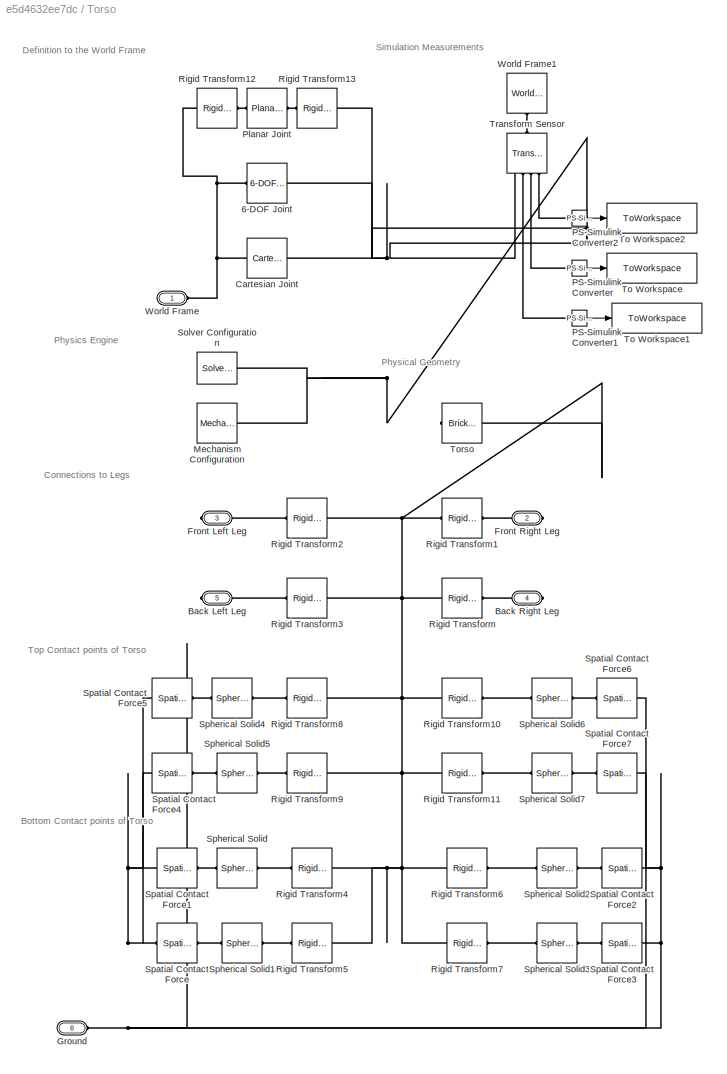
BLOCK [SubSystem] Torso
  PortSchema = {"entries":[{"content":{"sides":[{"content":{"connectorIds":[]},"type":"ConnectorPlacement.EquallySpacedRectSide","uuid":"a5f9388a-3463-4939-824e-c198da670e8b"},{"content":{"connectorIds":[],"side":"RIGHT"},"type":"ConnectorPlacement.EquallySpacedRectSide","uuid":"721d6b97-2d6f-40dc-acf2-829076b6800c"},{"content":{"connectorIds":["LConn1","LConn2"],"side":"TOP"},"type":"ConnectorPlacement.EquallyS...<+425ch>
  Ports = [0, 0, 0, 0, 0, 2, 4]
  RequestExecContextInheritance = off
BLOCK [Reference] Torso/6-DOF Joint  REF=sm_lib/Joints/6-DOF Joint
  Commented = on
  Ports = [0, 0, 0, 0, 0, 1, 1]
  SourceBlock = sm_lib/Joints/6-DOF Joint
  SourceProductBaseCode = MS
  SourceType = 6-DOF Joint
BLOCK [PMIOPort] Torso/Back Left Leg
  Port = 5
  Side = Right
BLOCK [PMIOPort] Torso/Back Right Leg
  Port = 4
  Side = Right
BLOCK [Reference] Torso/Cartesian Joint  REF=sm_lib/Joints/Cartesian
Joint
  Commented = on
  Ports = [0, 0, 0, 0, 0, 1, 1]
  SourceBlock = sm_lib/Joints/Cartesian\nJoint
  SourceProductBaseCode = MS
  SourceType = Cartesian\nJoint
BLOCK [PMIOPort] Torso/Front Left Leg
  Port = 3
  Side = Right
BLOCK [PMIOPort] Torso/Front Right Leg
  Port = 2
  Side = Right
BLOCK [PMIOPort] Torso/Ground
  Port = 6
  Side = Left
BLOCK [Reference] Torso/Mechanism Configuration  REF=sm_lib/Utilities/Mechanism
Configuration
  Ports = [0, 0, 0, 0, 0, 0, 1]
  SourceBlock = sm_lib/Utilities/Mechanism\nConfiguration
  SourceProductBaseCode = MS
  SourceType = Mechanism\nConfiguration
BLOCK [Reference] Torso/PS-Simulink Converter  REF=nesl_utility/PS-Simulink
Converter
  Ports = [0, 1, 0, 0, 0, 1]
  SourceBlock = nesl_utility/PS-Simulink\nConverter
  SourceProductBaseCode = SS
  SourceType = PS-Simulink\nConverter
BLOCK [Reference] Torso/PS-Simulink Converter1  REF=nesl_utility/PS-Simulink
Converter
  Ports = [0, 1, 0, 0, 0, 1]
  SourceBlock = nesl_utility/PS-Simulink\nConverter
  SourceProductBaseCode = SS
  SourceType = PS-Simulink\nConverter
BLOCK [Reference] Torso/PS-Simulink Converter2  REF=nesl_utility/PS-Simulink
Converter
  Ports = [0, 1, 0, 0, 0, 1]
  SourceBlock = nesl_utility/PS-Simulink\nConverter
  SourceProductBaseCode = SS
  SourceType = PS-Simulink\nConverter
BLOCK [Reference] Torso/Planar Joint  REF=sm_lib/Joints/Planar Joint
  Ports = [0, 0, 0, 0, 0, 1, 1]
  SourceBlock = sm_lib/Joints/Planar Joint
  SourceProductBaseCode = MS
  SourceType = Planar Joint
BLOCK [Reference] Torso/Rigid Transform  REF=sm_lib/Frames and
Transforms/Rigid
Transform
  Ports = [0, 0, 0, 0, 0, 1, 1]
  SourceBlock = sm_lib/Frames and\nTransforms/Rigid\nTransform
  SourceProductBaseCode = MS
  SourceType = Rigid\nTransform
BLOCK [Reference] Torso/Rigid Transform1  REF=sm_lib/Frames and
Transforms/Rigid
Transform
  Ports = [0, 0, 0, 0, 0, 1, 1]
  SourceBlock = sm_lib/Frames and\nTransforms/Rigid\nTransform
  SourceProductBaseCode = MS
  SourceType = Rigid\nTransform
BLOCK [Reference] Torso/Rigid Transform10  REF=sm_lib/Frames and
Transforms/Rigid
Transform
  Ports = [0, 0, 0, 0, 0, 1, 1]
  SourceBlock = sm_lib/Frames and\nTransforms/Rigid\nTransform
  SourceProductBaseCode = MS
  SourceType = Rigid\nTransform
BLOCK [Reference] Torso/Rigid Transform11  REF=sm_lib/Frames and
Transforms/Rigid
Transform
  Ports = [0, 0, 0, 0, 0, 1, 1]
  SourceBlock = sm_lib/Frames and\nTransforms/Rigid\nTransform
  SourceProductBaseCode = MS
  SourceType = Rigid\nTransform
BLOCK [Reference] Torso/Rigid Transform12  REF=sm_lib/Frames and
Transforms/Rigid
Transform
  Ports = [0, 0, 0, 0, 0, 1, 1]
  SourceBlock = sm_lib/Frames and\nTransforms/Rigid\nTransform
  SourceProductBaseCode = MS
  SourceType = Rigid\nTransform
BLOCK [Reference] Torso/Rigid Transform13  REF=sm_lib/Frames and
Transforms/Rigid
Transform
  Ports = [0, 0, 0, 0, 0, 1, 1]
  SourceBlock = sm_lib/Frames and\nTransforms/Rigid\nTransform
  SourceProductBaseCode = MS
  SourceType = Rigid\nTransform
BLOCK [Reference] Torso/Rigid Transform2  REF=sm_lib/Frames and
Transforms/Rigid
Transform
  Ports = [0, 0, 0, 0, 0, 1, 1]
  SourceBlock = sm_lib/Frames and\nTransforms/Rigid\nTransform
  SourceProductBaseCode = MS
  SourceType = Rigid\nTransform
BLOCK [Reference] Torso/Rigid Transform3  REF=sm_lib/Frames and
Transforms/Rigid
Transform
  Ports = [0, 0, 0, 0, 0, 1, 1]
  SourceBlock = sm_lib/Frames and\nTransforms/Rigid\nTransform
  SourceProductBaseCode = MS
  SourceType = Rigid\nTransform
BLOCK [Reference] Torso/Rigid Transform4  REF=sm_lib/Frames and
Transforms/Rigid
Transform
  Ports = [0, 0, 0, 0, 0, 1, 1]
  SourceBlock = sm_lib/Frames and\nTransforms/Rigid\nTransform
  SourceProductBaseCode = MS
  SourceType = Rigid\nTransform
BLOCK [Reference] Torso/Rigid Transform5  REF=sm_lib/Frames and
Transforms/Rigid
Transform
  Ports = [0, 0, 0, 0, 0, 1, 1]
  SourceBlock = sm_lib/Frames and\nTransforms/Rigid\nTransform
  SourceProductBaseCode = MS
  SourceType = Rigid\nTransform
BLOCK [Reference] Torso/Rigid Transform6  REF=sm_lib/Frames and
Transforms/Rigid
Transform
  Ports = [0, 0, 0, 0, 0, 1, 1]
  SourceBlock = sm_lib/Frames and\nTransforms/Rigid\nTransform
  SourceProductBaseCode = MS
  SourceType = Rigid\nTransform
BLOCK [Reference] Torso/Rigid Transform7  REF=sm_lib/Frames and
Transforms/Rigid
Transform
  Ports = [0, 0, 0, 0, 0, 1, 1]
  SourceBlock = sm_lib/Frames and\nTransforms/Rigid\nTransform
  SourceProductBaseCode = MS
  SourceType = Rigid\nTransform
BLOCK [Reference] Torso/Rigid Transform8  REF=sm_lib/Frames and
Transforms/Rigid
Transform
  Ports = [0, 0, 0, 0, 0, 1, 1]
  SourceBlock = sm_lib/Frames and\nTransforms/Rigid\nTransform
  SourceProductBaseCode = MS
  SourceType = Rigid\nTransform
BLOCK [Reference] Torso/Rigid Transform9  REF=sm_lib/Frames and
Transforms/Rigid
Transform
  Ports = [0, 0, 0, 0, 0, 1, 1]
  SourceBlock = sm_lib/Frames and\nTransforms/Rigid\nTransform
  SourceProductBaseCode = MS
  SourceType = Rigid\nTransform
BLOCK [Reference] Torso/Solver Configuration  REF=nesl_utility/Solver
Configuration
  Ports = [0, 0, 0, 0, 0, 0, 1]
  SourceBlock = nesl_utility/Solver\nConfiguration
  SourceProductBaseCode = SS
  SourceType = Solver\nConfiguration
BLOCK [Reference] Torso/Spatial Contact Force  REF=sm_lib/Forces and
Torques/Spatial
Contact Force
  Ports = [0, 0, 0, 0, 0, 1, 1]
  SourceBlock = sm_lib/Forces and\nTorques/Spatial\nContact Force
  SourceProductBaseCode = MS
  SourceType = Spatial\nContact Force
BLOCK [Reference] Torso/Spatial Contact Force1  REF=sm_lib/Forces and
Torques/Spatial
Contact Force
  Ports = [0, 0, 0, 0, 0, 1, 1]
  SourceBlock = sm_lib/Forces and\nTorques/Spatial\nContact Force
  SourceProductBaseCode = MS
  SourceType = Spatial\nContact Force
BLOCK [Reference] Torso/Spatial Contact Force2  REF=sm_lib/Forces and
Torques/Spatial
Contact Force
  Ports = [0, 0, 0, 0, 0, 1, 1]
  SourceBlock = sm_lib/Forces and\nTorques/Spatial\nContact Force
  SourceProductBaseCode = MS
  SourceType = Spatial\nContact Force
BLOCK [Reference] Torso/Spatial Contact Force3  REF=sm_lib/Forces and
Torques/Spatial
Contact Force
  Ports = [0, 0, 0, 0, 0, 1, 1]
  SourceBlock = sm_lib/Forces and\nTorques/Spatial\nContact Force
  SourceProductBaseCode = MS
  SourceType = Spatial\nContact Force
BLOCK [Reference] Torso/Spatial Contact Force4  REF=sm_lib/Forces and
Torques/Spatial
Contact Force
  Ports = [0, 0, 0, 0, 0, 1, 1]
  SourceBlock = sm_lib/Forces and\nTorques/Spatial\nContact Force
  SourceProductBaseCode = MS
  SourceType = Spatial\nContact Force
BLOCK [Reference] Torso/Spatial Contact Force5  REF=sm_lib/Forces and
Torques/Spatial
Contact Force
  Ports = [0, 0, 0, 0, 0, 1, 1]
  SourceBlock = sm_lib/Forces and\nTorques/Spatial\nContact Force
  SourceProductBaseCode = MS
  SourceType = Spatial\nContact Force
BLOCK [Reference] Torso/Spatial Contact Force6  REF=sm_lib/Forces and
Torques/Spatial
Contact Force
  Ports = [0, 0, 0, 0, 0, 1, 1]
  SourceBlock = sm_lib/Forces and\nTorques/Spatial\nContact Force
  SourceProductBaseCode = MS
  SourceType = Spatial\nContact Force
BLOCK [Reference] Torso/Spatial Contact Force7  REF=sm_lib/Forces and
Torques/Spatial
Contact Force
  Ports = [0, 0, 0, 0, 0, 1, 1]
  SourceBlock = sm_lib/Forces and\nTorques/Spatial\nContact Force
  SourceProductBaseCode = MS
  SourceType = Spatial\nContact Force
BLOCK [Reference] Torso/Spherical Solid  REF=sm_lib/Body Elements/Spherical Solid
  Ports = [0, 0, 0, 0, 0, 1, 1]
  SourceBlock = sm_lib/Body Elements/Spherical Solid
  SourceProductBaseCode = MS
  SourceType = Spherical Solid
BLOCK [Reference] Torso/Spherical Solid1  REF=sm_lib/Body Elements/Spherical Solid
  Ports = [0, 0, 0, 0, 0, 1, 1]
  SourceBlock = sm_lib/Body Elements/Spherical Solid
  SourceProductBaseCode = MS
  SourceType = Spherical Solid
BLOCK [Reference] Torso/Spherical Solid2  REF=sm_lib/Body Elements/Spherical Solid
  Ports = [0, 0, 0, 0, 0, 1, 1]
  SourceBlock = sm_lib/Body Elements/Spherical Solid
  SourceProductBaseCode = MS
  SourceType = Spherical Solid
BLOCK [Reference] Torso/Spherical Solid3  REF=sm_lib/Body Elements/Spherical Solid
  Ports = [0, 0, 0, 0, 0, 1, 1]
  SourceBlock = sm_lib/Body Elements/Spherical Solid
  SourceProductBaseCode = MS
  SourceType = Spherical Solid
BLOCK [Reference] Torso/Spherical Solid4  REF=sm_lib/Body Elements/Spherical Solid
  Ports = [0, 0, 0, 0, 0, 1, 1]
  SourceBlock = sm_lib/Body Elements/Spherical Solid
  SourceProductBaseCode = MS
  SourceType = Spherical Solid
BLOCK [Reference] Torso/Spherical Solid5  REF=sm_lib/Body Elements/Spherical Solid
  Ports = [0, 0, 0, 0, 0, 1, 1]
  SourceBlock = sm_lib/Body Elements/Spherical Solid
  SourceProductBaseCode = MS
  SourceType = Spherical Solid
BLOCK [Reference] Torso/Spherical Solid6  REF=sm_lib/Body Elements/Spherical Solid
  Ports = [0, 0, 0, 0, 0, 1, 1]
  SourceBlock = sm_lib/Body Elements/Spherical Solid
  SourceProductBaseCode = MS
  SourceType = Spherical Solid
BLOCK [Reference] Torso/Spherical Solid7  REF=sm_lib/Body Elements/Spherical Solid
  Ports = [0, 0, 0, 0, 0, 1, 1]
  SourceBlock = sm_lib/Body Elements/Spherical Solid
  SourceProductBaseCode = MS
  SourceType = Spherical Solid
BLOCK [ToWorkspace] Torso/To Workspace
  FixptAsFi = on
  MaxDataPoints = 200
  Ports = [1]
  SampleTime = 1
  SaveFormat = Timeseries
  VariableName = axis
BLOCK [ToWorkspace] Torso/To Workspace1
  FixptAsFi = on
  MaxDataPoints = 200
  Ports = [1]
  SampleTime = 1
  SaveFormat = Timeseries
  VariableName = q
BLOCK [ToWorkspace] Torso/To Workspace2
  FixptAsFi = on
  MaxDataPoints = 200
  Ports = [1]
  SampleTime = 1
  SaveFormat = Timeseries
  VariableName = distance_forward
BLOCK [Reference] Torso/Torso  REF=sm_lib/Body Elements/Brick Solid
  NameLocation = right
  Ports = [0, 0, 0, 0, 0, 0, 1]
  SourceBlock = sm_lib/Body Elements/Brick Solid
  SourceProductBaseCode = MS
  SourceType = Brick Solid
BLOCK [Reference] Torso/Transform Sensor  REF=sm_lib/Frames and
Transforms/Transform
Sensor
  NameLocation = left
  Ports = [0, 0, 0, 0, 0, 1, 4]
  SourceBlock = sm_lib/Frames and\nTransforms/Transform\nSensor
  SourceProductBaseCode = MS
  SourceType = Transform\nSensor
BLOCK [PMIOPort] Torso/World Frame
  Side = Left
BLOCK [Reference] Torso/World Frame1  REF=sm_lib/Frames and
Transforms/World Frame
  NameLocation = left
  Ports = [0, 0, 0, 0, 0, 0, 1]
  SourceBlock = sm_lib/Frames and\nTransforms/World Frame
  SourceProductBaseCode = MS
  SourceType = World Frame
BLOCK [Reference] World Frame  REF=sm_lib/Frames and
Transforms/World Frame
  Ports = [0, 0, 0, 0, 0, 0, 1]
  SourceBlock = sm_lib/Frames and\nTransforms/World Frame
  SourceProductBaseCode = MS
  SourceType = World Frame
ANNOTATION Torso: Bottom Contact points of Torso
ANNOTATION Torso: Connections to Legs
ANNOTATION Torso: Definition to the World Frame
ANNOTATION Torso: Physical Geometry
ANNOTATION Torso: Physics Engine
ANNOTATION Torso: Simulation Measurements
ANNOTATION Torso: Top Contact points of Torso
LINE  Front Right Upper Leg/From Workspace:1 ->  Front Right Upper Leg/Simulink-PS Converter:1
LINE Back Left Lower Leg/From Workspace:1 -> Back Left Lower Leg/Simulink-PS Converter1:1
LINE Back Left Upper Leg/From Workspace:1 -> Back Left Upper Leg/Simulink-PS Converter:1
LINE Back Right Lower Leg/Constant angle t <= T//4:1 -> Back Right Lower Leg/t>T//4:3
LINE Back Right Lower Leg/Constant angle t >= 7T//4:1 -> Back Right Lower Leg/t>7T//4:1
LINE Back Right Lower Leg/Constant1:1 -> Back Right Lower Leg/Sum1:1
LINE Back Right Lower Leg/From Workspace:1 -> Back Right Lower Leg/Simulink-PS Converter1:1
LINE Back Right Lower Leg/Half sine wave T//4 < t < 7T//4/-A*w^2:1 -> Back Right Lower Leg/Half sine wave T//4 < t < 7T//4/Mux:3
LINE Back Right Lower Leg/Half sine wave T//4 < t < 7T//4/A*w:1 -> Back Right Lower Leg/Half sine wave T//4 < t < 7T//4/Mux:2
LINE Back Right Lower Leg/Half sine wave T//4 < t < 7T//4/A:1 -> Back Right Lower Leg/Half sine wave T//4 < t < 7T//4/Sum:2
LINE Back Right Lower Leg/Half sine wave T//4 < t < 7T//4/Constant2:1 -> Back Right Lower Leg/Half sine wave T//4 < t < 7T//4/Sum:1
LINE Back Right Lower Leg/Half sine wave T//4 < t < 7T//4/Fcn:1 -> Back Right Lower Leg/Half sine wave T//4 < t < 7T//4/Time:enable
LINE Back Right Lower Leg/Half sine wave T//4 < t < 7T//4/Mux:1 -> Back Right Lower Leg/Half sine wave T//4 < t < 7T//4/y:1
LINE Back Right Lower Leg/Half sine wave T//4 < t < 7T//4/Repeating Sequence:1 -> Back Right Lower Leg/Half sine wave T//4 < t < 7T//4/Fcn:1
LINE Back Right Lower Leg/Half sine wave T//4 < t < 7T//4/Sum:1 -> Back Right Lower Leg/Half sine wave T//4 < t < 7T//4/Mux:1
LINE Back Right Lower Leg/Half sine wave T//4 < t < 7T//4/Time/Constant3:1 -> Back Right Lower Leg/Half sine wave T//4 < t < 7T//4/Time/time:1
LINE Back Right Lower Leg/Half sine wave T//4 < t < 7T//4/Time/time:1 -> Back Right Lower Leg/Half sine wave T//4 < t < 7T//4/Time/t:1
NET Back Right Lower Leg/Half sine wave T//4 < t < 7T//4/Time:1 -> Back Right Lower Leg/Half sine wave T//4 < t < 7T//4/w  :1, Back Right Lower Leg/Half sine wave T//4 < t < 7T//4/w :1, Back Right Lower Leg/Half sine wave T//4 < t < 7T//4/w:1
LINE Back Right Lower Leg/Half sine wave T//4 < t < 7T//4/cos(wt):1 -> Back Right Lower Leg/Half sine wave T//4 < t < 7T//4/A*w:1
LINE Back Right Lower Leg/Half sine wave T//4 < t < 7T//4/sin(wt) :1 -> Back Right Lower Leg/Half sine wave T//4 < t < 7T//4/-A*w^2:1
LINE Back Right Lower Leg/Half sine wave T//4 < t < 7T//4/sin(wt):1 -> Back Right Lower Leg/Half sine wave T//4 < t < 7T//4/A:1
LINE Back Right Lower Leg/Half sine wave T//4 < t < 7T//4/w  :1 -> Back Right Lower Leg/Half sine wave T//4 < t < 7T//4/sin(wt) :1
LINE Back Right Lower Leg/Half sine wave T//4 < t < 7T//4/w :1 -> Back Right Lower Leg/Half sine wave T//4 < t < 7T//4/cos(wt):1
LINE Back Right Lower Leg/Half sine wave T//4 < t < 7T//4/w:1 -> Back Right Lower Leg/Half sine wave T//4 < t < 7T//4/sin(wt):1
LINE Back Right Lower Leg/Half sine wave T//4 < t < 7T//4:1 -> Back Right Lower Leg/t>T//4:1
NET Back Right Lower Leg/Repeating Sequence:1 -> Back Right Lower Leg/t>7T//4:2, Back Right Lower Leg/t>T//4:2
LINE Back Right Lower Leg/Sum1:1 -> Back Right Lower Leg/Selector:1
LINE Back Right Lower Leg/t>7T//4:1 -> Back Right Lower Leg/Sum1:2
LINE Back Right Lower Leg/t>T//4:1 -> Back Right Lower Leg/t>7T//4:3
LINE Back Right Upper Leg/From Workspace:1 -> Back Right Upper Leg/Simulink-PS Converter:1
LINE Front Left Lower Leg/Constant angle t <= T//4:1 -> Front Left Lower Leg/t>T//4:3
LINE Front Left Lower Leg/Constant angle t >= 7T//4:1 -> Front Left Lower Leg/t>7T//4:1
LINE Front Left Lower Leg/Constant1:1 -> Front Left Lower Leg/Sum1:1
LINE Front Left Lower Leg/From Workspace:1 -> Front Left Lower Leg/Simulink-PS Converter1:1
LINE Front Left Lower Leg/Half sine wave T//4 < t < 7T//4/-A*w^2:1 -> Front Left Lower Leg/Half sine wave T//4 < t < 7T//4/Mux:3
LINE Front Left Lower Leg/Half sine wave T//4 < t < 7T//4/A*w:1 -> Front Left Lower Leg/Half sine wave T//4 < t < 7T//4/Mux:2
LINE Front Left Lower Leg/Half sine wave T//4 < t < 7T//4/A:1 -> Front Left Lower Leg/Half sine wave T//4 < t < 7T//4/Sum:2
LINE Front Left Lower Leg/Half sine wave T//4 < t < 7T//4/Constant2:1 -> Front Left Lower Leg/Half sine wave T//4 < t < 7T//4/Sum:1
LINE Front Left Lower Leg/Half sine wave T//4 < t < 7T//4/Fcn:1 -> Front Left Lower Leg/Half sine wave T//4 < t < 7T//4/Time:enable
LINE Front Left Lower Leg/Half sine wave T//4 < t < 7T//4/Mux:1 -> Front Left Lower Leg/Half sine wave T//4 < t < 7T//4/y:1
LINE Front Left Lower Leg/Half sine wave T//4 < t < 7T//4/Repeating Sequence:1 -> Front Left Lower Leg/Half sine wave T//4 < t < 7T//4/Fcn:1
LINE Front Left Lower Leg/Half sine wave T//4 < t < 7T//4/Sum:1 -> Front Left Lower Leg/Half sine wave T//4 < t < 7T//4/Mux:1
LINE Front Left Lower Leg/Half sine wave T//4 < t < 7T//4/Time/Constant3:1 -> Front Left Lower Leg/Half sine wave T//4 < t < 7T//4/Time/time:1
LINE Front Left Lower Leg/Half sine wave T//4 < t < 7T//4/Time/time:1 -> Front Left Lower Leg/Half sine wave T//4 < t < 7T//4/Time/t:1
NET Front Left Lower Leg/Half sine wave T//4 < t < 7T//4/Time:1 -> Front Left Lower Leg/Half sine wave T//4 < t < 7T//4/w  :1, Front Left Lower Leg/Half sine wave T//4 < t < 7T//4/w :1, Front Left Lower Leg/Half sine wave T//4 < t < 7T//4/w:1
LINE Front Left Lower Leg/Half sine wave T//4 < t < 7T//4/cos(wt):1 -> Front Left Lower Leg/Half sine wave T//4 < t < 7T//4/A*w:1
LINE Front Left Lower Leg/Half sine wave T//4 < t < 7T//4/sin(wt) :1 -> Front Left Lower Leg/Half sine wave T//4 < t < 7T//4/-A*w^2:1
LINE Front Left Lower Leg/Half sine wave T//4 < t < 7T//4/sin(wt):1 -> Front Left Lower Leg/Half sine wave T//4 < t < 7T//4/A:1
LINE Front Left Lower Leg/Half sine wave T//4 < t < 7T//4/w  :1 -> Front Left Lower Leg/Half sine wave T//4 < t < 7T//4/sin(wt) :1
LINE Front Left Lower Leg/Half sine wave T//4 < t < 7T//4/w :1 -> Front Left Lower Leg/Half sine wave T//4 < t < 7T//4/cos(wt):1
LINE Front Left Lower Leg/Half sine wave T//4 < t < 7T//4/w:1 -> Front Left Lower Leg/Half sine wave T//4 < t < 7T//4/sin(wt):1
LINE Front Left Lower Leg/Half sine wave T//4 < t < 7T//4:1 -> Front Left Lower Leg/t>T//4:1
NET Front Left Lower Leg/Repeating Sequence:1 -> Front Left Lower Leg/t>7T//4:2, Front Left Lower Leg/t>T//4:2
LINE Front Left Lower Leg/Sum1:1 -> Front Left Lower Leg/Selector:1
LINE Front Left Lower Leg/t>7T//4:1 -> Front Left Lower Leg/Sum1:2
LINE Front Left Lower Leg/t>T//4:1 -> Front Left Lower Leg/t>7T//4:3
LINE Front Left Upper Leg/From Workspace:1 -> Front Left Upper Leg/Simulink-PS Converter:1
LINE Front Right Lower Leg/Constant angle t <= T//4:1 -> Front Right Lower Leg/t>T//4:3
LINE Front Right Lower Leg/Constant angle t >= 7T//4:1 -> Front Right Lower Leg/t>7T//4:1
LINE Front Right Lower Leg/Constant1:1 -> Front Right Lower Leg/Sum1:1
LINE Front Right Lower Leg/From Workspace:1 -> Front Right Lower Leg/Simulink-PS Converter1:1
LINE Front Right Lower Leg/Half sine wave T//4 < t < 7T//4/-A*w^2:1 -> Front Right Lower Leg/Half sine wave T//4 < t < 7T//4/Mux:3
LINE Front Right Lower Leg/Half sine wave T//4 < t < 7T//4/A*w:1 -> Front Right Lower Leg/Half sine wave T//4 < t < 7T//4/Mux:2
LINE Front Right Lower Leg/Half sine wave T//4 < t < 7T//4/A:1 -> Front Right Lower Leg/Half sine wave T//4 < t < 7T//4/Sum:2
LINE Front Right Lower Leg/Half sine wave T//4 < t < 7T//4/Constant2:1 -> Front Right Lower Leg/Half sine wave T//4 < t < 7T//4/Sum:1
LINE Front Right Lower Leg/Half sine wave T//4 < t < 7T//4/Fcn:1 -> Front Right Lower Leg/Half sine wave T//4 < t < 7T//4/Time:enable
LINE Front Right Lower Leg/Half sine wave T//4 < t < 7T//4/Mux:1 -> Front Right Lower Leg/Half sine wave T//4 < t < 7T//4/y:1
LINE Front Right Lower Leg/Half sine wave T//4 < t < 7T//4/Repeating Sequence:1 -> Front Right Lower Leg/Half sine wave T//4 < t < 7T//4/Fcn:1
LINE Front Right Lower Leg/Half sine wave T//4 < t < 7T//4/Sum:1 -> Front Right Lower Leg/Half sine wave T//4 < t < 7T//4/Mux:1
LINE Front Right Lower Leg/Half sine wave T//4 < t < 7T//4/Time/Constant3:1 -> Front Right Lower Leg/Half sine wave T//4 < t < 7T//4/Time/time:1
LINE Front Right Lower Leg/Half sine wave T//4 < t < 7T//4/Time/time:1 -> Front Right Lower Leg/Half sine wave T//4 < t < 7T//4/Time/t:1
NET Front Right Lower Leg/Half sine wave T//4 < t < 7T//4/Time:1 -> Front Right Lower Leg/Half sine wave T//4 < t < 7T//4/w  :1, Front Right Lower Leg/Half sine wave T//4 < t < 7T//4/w :1, Front Right Lower Leg/Half sine wave T//4 < t < 7T//4/w:1
LINE Front Right Lower Leg/Half sine wave T//4 < t < 7T//4/cos(wt):1 -> Front Right Lower Leg/Half sine wave T//4 < t < 7T//4/A*w:1
LINE Front Right Lower Leg/Half sine wave T//4 < t < 7T//4/sin(wt) :1 -> Front Right Lower Leg/Half sine wave T//4 < t < 7T//4/-A*w^2:1
LINE Front Right Lower Leg/Half sine wave T//4 < t < 7T//4/sin(wt):1 -> Front Right Lower Leg/Half sine wave T//4 < t < 7T//4/A:1
LINE Front Right Lower Leg/Half sine wave T//4 < t < 7T//4/w  :1 -> Front Right Lower Leg/Half sine wave T//4 < t < 7T//4/sin(wt) :1
LINE Front Right Lower Leg/Half sine wave T//4 < t < 7T//4/w :1 -> Front Right Lower Leg/Half sine wave T//4 < t < 7T//4/cos(wt):1
LINE Front Right Lower Leg/Half sine wave T//4 < t < 7T//4/w:1 -> Front Right Lower Leg/Half sine wave T//4 < t < 7T//4/sin(wt):1
LINE Front Right Lower Leg/Half sine wave T//4 < t < 7T//4:1 -> Front Right Lower Leg/t>T//4:1
NET Front Right Lower Leg/Repeating Sequence:1 -> Front Right Lower Leg/t>7T//4:2, Front Right Lower Leg/t>T//4:2
LINE Front Right Lower Leg/Sum1:1 -> Front Right Lower Leg/Selector:1
LINE Front Right Lower Leg/t>7T//4:1 -> Front Right Lower Leg/Sum1:2
LINE Front Right Lower Leg/t>T//4:1 -> Front Right Lower Leg/t>7T//4:3
LINE Torso/PS-Simulink Converter1:1 -> Torso/To Workspace1:1
LINE Torso/PS-Simulink Converter2:1 -> Torso/To Workspace2:1
LINE Torso/PS-Simulink Converter:1 -> Torso/To Workspace:1
PLINE  Front Right Upper Leg/ Knee:RConn1 --  Front Right Upper Leg/Spatial Contact Force1:RConn1
PNET net1:  Front Right Upper Leg/Brick Solid:RConn1 --  Front Right Upper Leg/Rigid Transform1:LConn1 --  Front Right Upper Leg/Rigid Transform2:LConn1 --  Front Right Upper Leg/Rigid Transform3:LConn1 --  Front Right Upper Leg/Rigid Transform4:LConn1 --  Front Right Upper Leg/Rigid Transform:LConn1
PLINE  Front Right Upper Leg/Cylindrical Solid1:RConn1 --  Front Right Upper Leg/Rigid Transform3:RConn1
PLINE  Front Right Upper Leg/Cylindrical Solid:RConn1 --  Front Right Upper Leg/Rigid Transform2:RConn1
PLINE  Front Right Upper Leg/Ellipsoidal Solid:LConn1 --  Front Right Upper Leg/Spatial Contact Force1:LConn1
PLINE  Front Right Upper Leg/Ellipsoidal Solid:RConn1 --  Front Right Upper Leg/Rigid Transform4:RConn1
PLINE  Front Right Upper Leg/Revolute Joint:LConn1 --  Front Right Upper Leg/Rigid Transform:RConn1
PLINE  Front Right Upper Leg/Revolute Joint:LConn2 --  Front Right Upper Leg/Simulink-PS Converter:RConn1
PLINE  Front Right Upper Leg/Revolute Joint:RConn1 --  Front Right Upper Leg/to body:RConn1
PLINE  Front Right Upper Leg/Rigid Transform1:RConn1 --  Front Right Upper Leg/to lower leg:RConn1
PLINE  Front Right Upper Leg:LConn1 -- Torso:RConn1
PNET net2:  Front Right Upper Leg:LConn2 -- Back Left Upper Leg:LConn2 -- Back Right Upper Leg:LConn2 -- Floor:LConn1 -- Front Left Upper Leg:LConn2 -- Spatial Contact Force1:RConn1 -- Spatial Contact Force2:RConn1 -- Spatial Contact Force3:RConn1 -- Spatial Contact Force:RConn1 -- Torso:LConn2
PLINE  Front Right Upper Leg:RConn1 -- Front Right Lower Leg:LConn1
PNET net3: Back Left Lower Leg/Brick Solid:RConn1 -- Back Left Lower Leg/Rigid Transform1:LConn1 -- Back Left Lower Leg/Rigid Transform:LConn1
PLINE Back Left Lower Leg/Revolute Joint:LConn1 -- Back Left Lower Leg/Rigid Transform:RConn1
PLINE Back Left Lower Leg/Revolute Joint:LConn2 -- Back Left Lower Leg/Simulink-PS Converter1:RConn1
PLINE Back Left Lower Leg/Revolute Joint:RConn1 -- Back Left Lower Leg/To Upper Leg:RConn1
PLINE Back Left Lower Leg/Rigid Transform1:RConn1 -- Back Left Lower Leg/to foot:RConn1
PLINE Back Left Lower Leg:LConn1 -- Back Left Upper Leg:RConn1
PLINE Back Left Lower Leg:RConn1 -- Spherical Solid1:RConn1
PLINE Back Left Upper Leg/ Knee:RConn1 -- Back Left Upper Leg/Spatial Contact Force1:RConn1
PNET net4: Back Left Upper Leg/Brick Solid:RConn1 -- Back Left Upper Leg/Rigid Transform1:LConn1 -- Back Left Upper Leg/Rigid Transform2:LConn1 -- Back Left Upper Leg/Rigid Transform3:LConn1 -- Back Left Upper Leg/Rigid Transform4:LConn1 -- Back Left Upper Leg/Rigid Transform:LConn1
PLINE Back Left Upper Leg/Cylindrical Solid1:RConn1 -- Back Left Upper Leg/Rigid Transform3:RConn1
PLINE Back Left Upper Leg/Cylindrical Solid:RConn1 -- Back Left Upper Leg/Rigid Transform2:RConn1
PLINE Back Left Upper Leg/Ellipsoidal Solid:LConn1 -- Back Left Upper Leg/Spatial Contact Force1:LConn1
PLINE Back Left Upper Leg/Ellipsoidal Solid:RConn1 -- Back Left Upper Leg/Rigid Transform4:RConn1
PLINE Back Left Upper Leg/Revolute Joint:LConn1 -- Back Left Upper Leg/Rigid Transform:RConn1
PLINE Back Left Upper Leg/Revolute Joint:LConn2 -- Back Left Upper Leg/Simulink-PS Converter:RConn1
PLINE Back Left Upper Leg/Revolute Joint:RConn1 -- Back Left Upper Leg/to body:RConn1
PLINE Back Left Upper Leg/Rigid Transform1:RConn1 -- Back Left Upper Leg/to lower leg:RConn1
PLINE Back Left Upper Leg:LConn1 -- Torso:RConn4
PNET net5: Back Right Lower Leg/Brick Solid:RConn1 -- Back Right Lower Leg/Rigid Transform1:LConn1 -- Back Right Lower Leg/Rigid Transform:LConn1
PLINE Back Right Lower Leg/Revolute Joint:LConn1 -- Back Right Lower Leg/Rigid Transform:RConn1
PLINE Back Right Lower Leg/Revolute Joint:LConn2 -- Back Right Lower Leg/Simulink-PS Converter1:RConn1
PLINE Back Right Lower Leg/Revolute Joint:RConn1 -- Back Right Lower Leg/To Upper Leg:RConn1
PLINE Back Right Lower Leg/Rigid Transform1:RConn1 -- Back Right Lower Leg/to foot:RConn1
PLINE Back Right Lower Leg:LConn1 -- Back Right Upper Leg:RConn1
PLINE Back Right Lower Leg:RConn1 -- Spherical Solid:RConn1
PLINE Back Right Upper Leg/ Knee:RConn1 -- Back Right Upper Leg/Spatial Contact Force1:RConn1
PNET net6: Back Right Upper Leg/Brick Solid:RConn1 -- Back Right Upper Leg/Rigid Transform1:LConn1 -- Back Right Upper Leg/Rigid Transform2:LConn1 -- Back Right Upper Leg/Rigid Transform3:LConn1 -- Back Right Upper Leg/Rigid Transform4:LConn1 -- Back Right Upper Leg/Rigid Transform:LConn1
PLINE Back Right Upper Leg/Cylindrical Solid1:RConn1 -- Back Right Upper Leg/Rigid Transform3:RConn1
PLINE Back Right Upper Leg/Cylindrical Solid:RConn1 -- Back Right Upper Leg/Rigid Transform2:RConn1
PLINE Back Right Upper Leg/Ellipsoidal Solid:LConn1 -- Back Right Upper Leg/Spatial Contact Force1:LConn1
PLINE Back Right Upper Leg/Ellipsoidal Solid:RConn1 -- Back Right Upper Leg/Rigid Transform4:RConn1
PLINE Back Right Upper Leg/Revolute Joint:LConn1 -- Back Right Upper Leg/Rigid Transform:RConn1
PLINE Back Right Upper Leg/Revolute Joint:LConn2 -- Back Right Upper Leg/Simulink-PS Converter:RConn1
PLINE Back Right Upper Leg/Revolute Joint:RConn1 -- Back Right Upper Leg/to body:RConn1
PLINE Back Right Upper Leg/Rigid Transform1:RConn1 -- Back Right Upper Leg/to lower leg:RConn1
PLINE Back Right Upper Leg:LConn1 -- Torso:RConn3
PLINE Floor/Floor1:RConn1 -- Floor/Floor:LConn1
PNET net7: Floor/Floor:RConn1 -- Floor/Rigid Transform1:RConn1 -- Floor/Rigid Transform:LConn1
PLINE Floor/Rigid Transform1:LConn1 -- Floor/World Frame1:RConn1
PLINE Floor/Rigid Transform:RConn1 -- Floor/Tiling:RConn1
PNET net8: Front Left Lower Leg/Brick Solid:RConn1 -- Front Left Lower Leg/Rigid Transform1:LConn1 -- Front Left Lower Leg/Rigid Transform:LConn1
PLINE Front Left Lower Leg/Revolute Joint:LConn1 -- Front Left Lower Leg/Rigid Transform:RConn1
PLINE Front Left Lower Leg/Revolute Joint:LConn2 -- Front Left Lower Leg/Simulink-PS Converter1:RConn1
PLINE Front Left Lower Leg/Revolute Joint:RConn1 -- Front Left Lower Leg/To Upper Leg:RConn1
PLINE Front Left Lower Leg/Rigid Transform1:RConn1 -- Front Left Lower Leg/to foot:RConn1
PLINE Front Left Lower Leg:LConn1 -- Front Left Upper Leg:RConn1
PLINE Front Left Lower Leg:RConn1 -- Spherical Solid2:RConn1
PLINE Front Left Upper Leg/ Knee:RConn1 -- Front Left Upper Leg/Spatial Contact Force1:RConn1
PNET net9: Front Left Upper Leg/Brick Solid:RConn1 -- Front Left Upper Leg/Rigid Transform1:LConn1 -- Front Left Upper Leg/Rigid Transform2:LConn1 -- Front Left Upper Leg/Rigid Transform3:LConn1 -- Front Left Upper Leg/Rigid Transform4:LConn1 -- Front Left Upper Leg/Rigid Transform:LConn1
PLINE Front Left Upper Leg/Cylindrical Solid1:RConn1 -- Front Left Upper Leg/Rigid Transform3:RConn1
PLINE Front Left Upper Leg/Cylindrical Solid:RConn1 -- Front Left Upper Leg/Rigid Transform2:RConn1
PLINE Front Left Upper Leg/Ellipsoidal Solid:LConn1 -- Front Left Upper Leg/Spatial Contact Force1:LConn1
PLINE Front Left Upper Leg/Ellipsoidal Solid:RConn1 -- Front Left Upper Leg/Rigid Transform4:RConn1
PLINE Front Left Upper Leg/Revolute Joint:LConn1 -- Front Left Upper Leg/Rigid Transform:RConn1
PLINE Front Left Upper Leg/Revolute Joint:LConn2 -- Front Left Upper Leg/Simulink-PS Converter:RConn1
PLINE Front Left Upper Leg/Revolute Joint:RConn1 -- Front Left Upper Leg/to body:RConn1
PLINE Front Left Upper Leg/Rigid Transform1:RConn1 -- Front Left Upper Leg/to lower leg:RConn1
PLINE Front Left Upper Leg:LConn1 -- Torso:RConn2
PNET net10: Front Right Lower Leg/Brick Solid:RConn1 -- Front Right Lower Leg/Rigid Transform1:LConn1 -- Front Right Lower Leg/Rigid Transform:LConn1
PLINE Front Right Lower Leg/Revolute Joint:LConn1 -- Front Right Lower Leg/Rigid Transform:RConn1
PLINE Front Right Lower Leg/Revolute Joint:LConn2 -- Front Right Lower Leg/Simulink-PS Converter1:RConn1
PLINE Front Right Lower Leg/Revolute Joint:RConn1 -- Front Right Lower Leg/To Upper Leg:RConn1
PLINE Front Right Lower Leg/Rigid Transform1:RConn1 -- Front Right Lower Leg/to foot:RConn1
PLINE Front Right Lower Leg:RConn1 -- Spherical Solid3:RConn1
PLINE Spatial Contact Force1:LConn1 -- Spherical Solid1:LConn1
PLINE Spatial Contact Force2:LConn1 -- Spherical Solid2:LConn1
PLINE Spatial Contact Force3:LConn1 -- Spherical Solid3:LConn1
PLINE Spatial Contact Force:LConn1 -- Spherical Solid:LConn1
PNET net11: Torso/6-DOF Joint:LConn1 -- Torso/Cartesian Joint:LConn1 -- Torso/Rigid Transform12:LConn1 -- Torso/World Frame:RConn1
PNET net12: Torso/6-DOF Joint:RConn1 -- Torso/Cartesian Joint:RConn1 -- Torso/Mechanism Configuration:RConn1 -- Torso/Rigid Transform10:LConn1 -- Torso/Rigid Transform11:LConn1 -- Torso/Rigid Transform13:RConn1 -- Torso/Rigid Transform1:LConn1 -- Torso/Rigid Transform2:LConn1 -- Torso/Rigid Transform3:LConn1 -- Torso/Rigid Transform4:LConn1 -- Torso/Rigid Transform5:LConn1 -- Torso/Rigid Transform6:LConn1 -- Torso/Rigid Transform7:LConn1 -- Torso/Rigid Transform8:LConn1 -- Torso/Rigid Transform9:LConn1 -- Torso/Rigid Transform:LConn1 -- Torso/Solver Configuration:RConn1 -- Torso/Torso:RConn1 -- Torso/Transform Sensor:RConn1
PLINE Torso/Back Left Leg:RConn1 -- Torso/Rigid Transform3:RConn1
PLINE Torso/Back Right Leg:RConn1 -- Torso/Rigid Transform:RConn1
PLINE Torso/Front Left Leg:RConn1 -- Torso/Rigid Transform2:RConn1
PLINE Torso/Front Right Leg:RConn1 -- Torso/Rigid Transform1:RConn1
PNET net13: Torso/Ground:RConn1 -- Torso/Spatial Contact Force1:RConn1 -- Torso/Spatial Contact Force2:RConn1 -- Torso/Spatial Contact Force3:RConn1 -- Torso/Spatial Contact Force4:RConn1 -- Torso/Spatial Contact Force5:RConn1 -- Torso/Spatial Contact Force6:RConn1 -- Torso/Spatial Contact Force7:RConn1 -- Torso/Spatial Contact Force:RConn1
PLINE Torso/PS-Simulink Converter1:LConn1 -- Torso/Transform Sensor:RConn2
PLINE Torso/PS-Simulink Converter2:LConn1 -- Torso/Transform Sensor:RConn4
PLINE Torso/PS-Simulink Converter:LConn1 -- Torso/Transform Sensor:RConn3
PLINE Torso/Planar Joint:LConn1 -- Torso/Rigid Transform12:RConn1
PLINE Torso/Planar Joint:RConn1 -- Torso/Rigid Transform13:LConn1
PLINE Torso/Rigid Transform10:RConn1 -- Torso/Spherical Solid6:RConn1
PLINE Torso/Rigid Transform11:RConn1 -- Torso/Spherical Solid7:RConn1
PLINE Torso/Rigid Transform4:RConn1 -- Torso/Spherical Solid:RConn1
PLINE Torso/Rigid Transform5:RConn1 -- Torso/Spherical Solid1:RConn1
PLINE Torso/Rigid Transform6:RConn1 -- Torso/Spherical Solid2:RConn1
PLINE Torso/Rigid Transform7:RConn1 -- Torso/Spherical Solid3:RConn1
PLINE Torso/Rigid Transform8:RConn1 -- Torso/Spherical Solid4:RConn1
PLINE Torso/Rigid Transform9:RConn1 -- Torso/Spherical Solid5:RConn1
PLINE Torso/Spatial Contact Force1:LConn1 -- Torso/Spherical Solid:LConn1
PLINE Torso/Spatial Contact Force2:LConn1 -- Torso/Spherical Solid2:LConn1
PLINE Torso/Spatial Contact Force3:LConn1 -- Torso/Spherical Solid3:LConn1
PLINE Torso/Spatial Contact Force4:LConn1 -- Torso/Spherical Solid5:LConn1
PLINE Torso/Spatial Contact Force5:LConn1 -- Torso/Spherical Solid4:LConn1
PLINE Torso/Spatial Contact Force6:LConn1 -- Torso/Spherical Solid6:LConn1
PLINE Torso/Spatial Contact Force7:LConn1 -- Torso/Spherical Solid7:LConn1
PLINE Torso/Spatial Contact Force:LConn1 -- Torso/Spherical Solid1:LConn1
PLINE Torso/Transform Sensor:LConn1 -- Torso/World Frame1:RConn1
PLINE Torso:LConn1 -- World Frame:RConn1
note: NET lines group one-source signal fan-out (src -> all destinations, sorted); 1:1 wires keep LINE; PNET lines group multi-terminal physical nets as a canonical sorted terminal list (undirected conserving connections); 2-terminal nets keep the pairwise PLINE form
